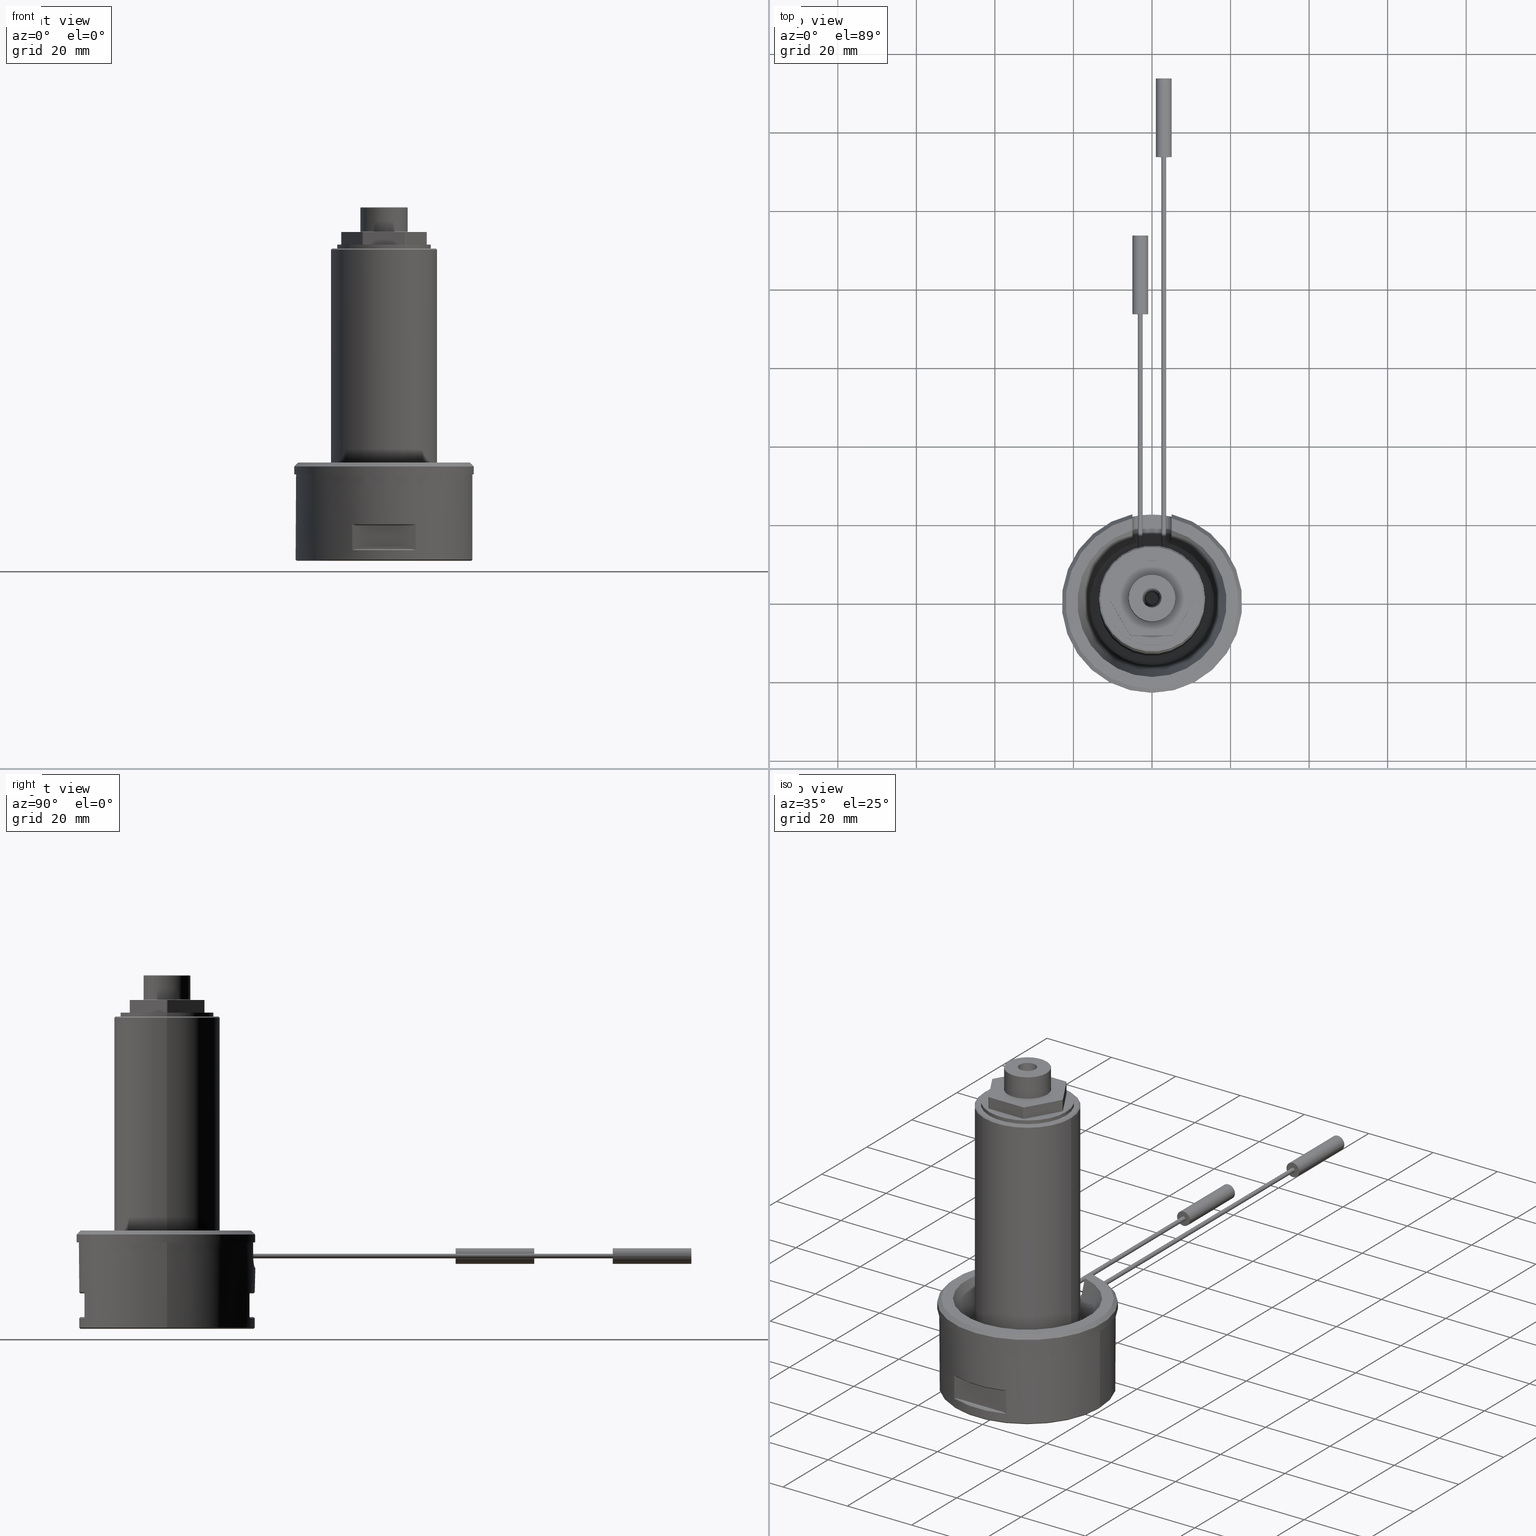
[diagram: canonical four-view strip — front | top / right | iso, engineering-drawing reading convention]
A machine part, canonical four-view strip (front | top / right | iso — engineering-drawing reading convention). The complete STEP part file that produces these views, byte-faithful:
ISO-10303-21;
HEADER;
/* Generated by software containing ST-Developer
 * from STEP Tools, Inc. (www.steptools.com) 
 */
/* OPTION: using custom schema-name function */

FILE_DESCRIPTION(
/* description */ (''),
/* implementation_level */ '2;1');

FILE_NAME(
/* name */ 'HSCL65S12A.stp',
/* time_stamp */ '2022-11-22T16:06:17+09:00',
/* author */ (''),
/* organization */ (''),
/* preprocessor_version */ 'ST-DEVELOPER v18.102',
/* originating_system */ 'SIEMENS PLM Software NX 2023',
/* authorisation */ '');

FILE_SCHEMA (('AUTOMOTIVE_DESIGN { 1 0 10303 214 3 1 1 1 }'));
ENDSEC;

DATA;
#10=SHAPE_REPRESENTATION_RELATIONSHIP('None',
'relationship between HSCL65S12A-None and HSCL65S12A-None',#22,#11);
#11=ADVANCED_BREP_SHAPE_REPRESENTATION('HSCL65S12A-None',(#182,#183,#184,
#185,#186),#1798);
#12=SHAPE_DEFINITION_REPRESENTATION(#13,#22);
#13=PRODUCT_DEFINITION_SHAPE('','',#14);
#14=PRODUCT_DEFINITION(' ','',#16,#15);
#15=PRODUCT_DEFINITION_CONTEXT('part definition',#21,'design');
#16=PRODUCT_DEFINITION_FORMATION_WITH_SPECIFIED_SOURCE(' ',' ',#18,
 .NOT_KNOWN.);
#17=PRODUCT_RELATED_PRODUCT_CATEGORY('part','',(#18));
#18=PRODUCT('HSCL65S12A','HSCL65S12A',' ',(#19));
#19=PRODUCT_CONTEXT(' ',#21,'mechanical');
#20=APPLICATION_PROTOCOL_DEFINITION('international standard',
'automotive_design',2010,#21);
#21=APPLICATION_CONTEXT(
'core data for automotive mechanical design processes');
#22=SHAPE_REPRESENTATION('HSCL65S12A-None',(#996),#1798);
#23=SPHERICAL_SURFACE('',#1063,11.);
#24=CONICAL_SURFACE('',#1048,15.9573329734641,18.7599999999998);
#25=CONICAL_SURFACE('',#1055,14.0000000000001,44.9999999999999);
#26=CONICAL_SURFACE('',#1059,4.74991933212937,29.9999999997446);
#27=CONICAL_SURFACE('',#1072,2.4447030463428,5.);
#28=CONICAL_SURFACE('',#1108,22.2,45.0000000000002);
#29=CONICAL_SURFACE('',#1109,22.2,45.0000000000002);
#30=CONICAL_SURFACE('',#1110,22.2,45.0000000000002);
#31=CONICAL_SURFACE('',#1111,22.2,45.0000000000002);
#32=CONICAL_SURFACE('',#1112,22.5,45.0000000000002);
#33=CONICAL_SURFACE('',#1113,13.2,45.0000000000005);
#34=CONICAL_SURFACE('',#1114,22.,45.);
#35=TOROIDAL_SURFACE('',#1046,15.199833762822,0.8);
#36=TOROIDAL_SURFACE('',#1066,11.9289321881346,5.);
#37=TOROIDAL_SURFACE('',#1106,6.2,0.2);
#38=TOROIDAL_SURFACE('',#1107,5.8,0.2);
#39=B_SPLINE_CURVE_WITH_KNOTS('',3,(#1518,#1519,#1520,#1521,#1522,#1523,
#1524,#1525,#1526,#1527,#1528,#1529,#1530,#1531,#1532,#1533),
 .UNSPECIFIED.,.F.,.F.,(4,3,3,3,3,4),(0.,0.210382546729296,0.420567258541741,
0.633779608703615,0.850966171544662,1.),.UNSPECIFIED.);
#40=B_SPLINE_CURVE_WITH_KNOTS('',3,(#1537,#1538,#1539,#1540,#1541,#1542,
#1543,#1544,#1545,#1546,#1547,#1548,#1549,#1550,#1551,#1552),
 .UNSPECIFIED.,.F.,.F.,(4,3,3,3,3,4),(0.,0.215733159336232,0.43133218634288,
0.64878656298699,0.86532988433574,1.),.UNSPECIFIED.);
#41=B_SPLINE_CURVE_WITH_KNOTS('',3,(#1573,#1574,#1575,#1576,#1577,#1578,
#1579,#1580,#1581,#1582,#1583,#1584,#1585),.UNSPECIFIED.,.F.,.F.,(4,3,3,
3,4),(0.,0.00583026885081895,0.111522525286211,0.626412330787777,1.),
 .UNSPECIFIED.);
#42=B_SPLINE_CURVE_WITH_KNOTS('',3,(#1589,#1590,#1591,#1592,#1593,#1594,
#1595,#1596,#1597,#1598,#1599,#1600,#1601),.UNSPECIFIED.,.F.,.F.,(4,3,3,
3,4),(0.,0.373587669212222,0.888477474713787,0.994169731149181,1.),
 .UNSPECIFIED.);
#43=B_SPLINE_CURVE_WITH_KNOTS('',3,(#1603,#1604,#1605,#1606,#1607,#1608,
#1609,#1610,#1611,#1612),.UNSPECIFIED.,.F.,.F.,(4,3,3,4),(0.,0.32770799258652,
0.655290656848575,1.),.UNSPECIFIED.);
#44=B_SPLINE_CURVE_WITH_KNOTS('',3,(#1614,#1615,#1616,#1617,#1618,#1619,
#1620),.UNSPECIFIED.,.F.,.F.,(4,3,4),(0.,0.718508524364149,1.),
 .UNSPECIFIED.);
#45=B_SPLINE_CURVE_WITH_KNOTS('',3,(#1624,#1625,#1626,#1627),
 .UNSPECIFIED.,.F.,.F.,(4,4),(0.,1.),.UNSPECIFIED.);
#46=B_SPLINE_CURVE_WITH_KNOTS('',3,(#1629,#1630,#1631,#1632,#1633,#1634,
#1635,#1636,#1637,#1638),.UNSPECIFIED.,.F.,.F.,(4,3,3,4),(0.,0.347353954695441,
0.696050717213932,1.),.UNSPECIFIED.);
#47=B_SPLINE_CURVE_WITH_KNOTS('',3,(#1717,#1718,#1719,#1720),
 .UNSPECIFIED.,.F.,.F.,(4,4),(0.,1.),.UNSPECIFIED.);
#48=B_SPLINE_CURVE_WITH_KNOTS('',3,(#1721,#1722,#1723,#1724),
 .UNSPECIFIED.,.F.,.F.,(4,4),(0.,1.),.UNSPECIFIED.);
#49=B_SPLINE_CURVE_WITH_KNOTS('',3,(#1725,#1726,#1727,#1728),
 .UNSPECIFIED.,.F.,.F.,(4,4),(0.,1.),.UNSPECIFIED.);
#50=B_SPLINE_CURVE_WITH_KNOTS('',3,(#1729,#1730,#1731,#1732),
 .UNSPECIFIED.,.F.,.F.,(4,4),(0.,1.),.UNSPECIFIED.);
#51=B_SPLINE_CURVE_WITH_KNOTS('',3,(#1744,#1745,#1746,#1747),
 .UNSPECIFIED.,.F.,.F.,(4,4),(0.,1.),.UNSPECIFIED.);
#52=B_SPLINE_CURVE_WITH_KNOTS('',3,(#1748,#1749,#1750,#1751),
 .UNSPECIFIED.,.F.,.F.,(4,4),(0.,1.),.UNSPECIFIED.);
#53=B_SPLINE_CURVE_WITH_KNOTS('',3,(#1752,#1753,#1754,#1755),
 .UNSPECIFIED.,.F.,.F.,(4,4),(0.,1.),.UNSPECIFIED.);
#54=B_SPLINE_CURVE_WITH_KNOTS('',3,(#1756,#1757,#1758,#1759),
 .UNSPECIFIED.,.F.,.F.,(4,4),(0.,1.),.UNSPECIFIED.);
#55=B_SPLINE_CURVE_WITH_KNOTS('',3,(#1761,#1762,#1763,#1764),
 .UNSPECIFIED.,.F.,.F.,(4,4),(0.,1.),.UNSPECIFIED.);
#56=B_SPLINE_CURVE_WITH_KNOTS('',3,(#1767,#1768,#1769,#1770),
 .UNSPECIFIED.,.F.,.F.,(4,4),(0.,1.),.UNSPECIFIED.);
#57=LINE('',#1436,#101);
#58=LINE('',#1441,#102);
#59=LINE('',#1445,#103);
#60=LINE('',#1449,#104);
#61=LINE('',#1453,#105);
#62=LINE('',#1457,#106);
#63=LINE('',#1461,#107);
#64=LINE('',#1463,#108);
#65=LINE('',#1467,#109);
#66=LINE('',#1471,#110);
#67=LINE('',#1473,#111);
#68=LINE('',#1475,#112);
#69=LINE('',#1479,#113);
#70=LINE('',#1483,#114);
#71=LINE('',#1485,#115);
#72=LINE('',#1489,#116);
#73=LINE('',#1491,#117);
#74=LINE('',#1495,#118);
#75=LINE('',#1499,#119);
#76=LINE('',#1504,#120);
#77=LINE('',#1507,#121);
#78=LINE('',#1512,#122);
#79=LINE('',#1515,#123);
#80=LINE('',#1554,#124);
#81=LINE('',#1558,#125);
#82=LINE('',#1563,#126);
#83=LINE('',#1567,#127);
#84=LINE('',#1568,#128);
#85=LINE('',#1640,#129);
#86=LINE('',#1644,#130);
#87=LINE('',#1670,#131);
#88=LINE('',#1671,#132);
#89=LINE('',#1689,#133);
#90=LINE('',#1690,#134);
#91=LINE('',#1691,#135);
#92=LINE('',#1692,#136);
#93=LINE('',#1693,#137);
#94=LINE('',#1694,#138);
#95=LINE('',#1707,#139);
#96=LINE('',#1712,#140);
#97=LINE('',#1734,#141);
#98=LINE('',#1739,#142);
#99=LINE('',#1765,#143);
#100=LINE('',#1771,#144);
#101=VECTOR('',#1154,1.);
#102=VECTOR('',#1157,1.);
#103=VECTOR('',#1160,1.);
#104=VECTOR('',#1163,1.);
#105=VECTOR('',#1166,1.);
#106=VECTOR('',#1169,1.);
#107=VECTOR('',#1174,1.);
#108=VECTOR('',#1175,1.);
#109=VECTOR('',#1180,1.);
#110=VECTOR('',#1183,1.);
#111=VECTOR('',#1186,1.);
#112=VECTOR('',#1187,1.);
#113=VECTOR('',#1192,1.);
#114=VECTOR('',#1195,1.);
#115=VECTOR('',#1198,1.);
#116=VECTOR('',#1201,1.);
#117=VECTOR('',#1204,1.);
#118=VECTOR('',#1207,1.);
#119=VECTOR('',#1212,1.);
#120=VECTOR('',#1215,1.);
#121=VECTOR('',#1218,1.);
#122=VECTOR('',#1221,1.);
#123=VECTOR('',#1224,1.);
#124=VECTOR('',#1227,1.);
#125=VECTOR('',#1232,1.);
#126=VECTOR('',#1235,1.);
#127=VECTOR('',#1240,1.);
#128=VECTOR('',#1241,1.);
#129=VECTOR('',#1254,1.);
#130=VECTOR('',#1257,1.);
#131=VECTOR('',#1292,1.);
#132=VECTOR('',#1293,1.);
#133=VECTOR('',#1316,1.);
#134=VECTOR('',#1317,1.);
#135=VECTOR('',#1318,1.);
#136=VECTOR('',#1319,1.);
#137=VECTOR('',#1320,1.);
#138=VECTOR('',#1321,1.);
#139=VECTOR('',#1338,1.);
#140=VECTOR('',#1343,1.);
#141=VECTOR('',#1350,1.);
#142=VECTOR('',#1355,1.);
#143=VECTOR('',#1362,1.);
#144=VECTOR('',#1365,1.);
#145=PRESENTATION_LAYER_ASSIGNMENT('1','Layer 1',(#182,#183,#184,#185,#186));
#146=STYLED_ITEM('',(#151),#182);
#147=STYLED_ITEM('',(#152),#183);
#148=STYLED_ITEM('',(#153),#184);
#149=STYLED_ITEM('',(#154),#185);
#150=STYLED_ITEM('',(#155),#186);
#151=PRESENTATION_STYLE_ASSIGNMENT((#156));
#152=PRESENTATION_STYLE_ASSIGNMENT((#157));
#153=PRESENTATION_STYLE_ASSIGNMENT((#158));
#154=PRESENTATION_STYLE_ASSIGNMENT((#159));
#155=PRESENTATION_STYLE_ASSIGNMENT((#160));
#156=SURFACE_STYLE_USAGE(.BOTH.,#161);
#157=SURFACE_STYLE_USAGE(.BOTH.,#162);
#158=SURFACE_STYLE_USAGE(.BOTH.,#163);
#159=SURFACE_STYLE_USAGE(.BOTH.,#164);
#160=SURFACE_STYLE_USAGE(.BOTH.,#165);
#161=SURFACE_SIDE_STYLE('',(#166));
#162=SURFACE_SIDE_STYLE('',(#167));
#163=SURFACE_SIDE_STYLE('',(#168));
#164=SURFACE_SIDE_STYLE('',(#169));
#165=SURFACE_SIDE_STYLE('',(#170));
#166=SURFACE_STYLE_FILL_AREA(#171);
#167=SURFACE_STYLE_FILL_AREA(#172);
#168=SURFACE_STYLE_FILL_AREA(#173);
#169=SURFACE_STYLE_FILL_AREA(#174);
#170=SURFACE_STYLE_FILL_AREA(#175);
#171=FILL_AREA_STYLE('',(#176));
#172=FILL_AREA_STYLE('',(#177));
#173=FILL_AREA_STYLE('',(#178));
#174=FILL_AREA_STYLE('',(#179));
#175=FILL_AREA_STYLE('',(#180));
#176=FILL_AREA_STYLE_COLOUR('',#181);
#177=FILL_AREA_STYLE_COLOUR('',#181);
#178=FILL_AREA_STYLE_COLOUR('',#181);
#179=FILL_AREA_STYLE_COLOUR('',#181);
#180=FILL_AREA_STYLE_COLOUR('',#181);
#181=COLOUR_RGB('medium steel',0.611764705882353,0.658823529411765,0.670588235294118);
#182=MANIFOLD_SOLID_BREP('',#187);
#183=MANIFOLD_SOLID_BREP('',#188);
#184=MANIFOLD_SOLID_BREP('',#189);
#185=MANIFOLD_SOLID_BREP('',#190);
#186=MANIFOLD_SOLID_BREP('',#191);
#187=CLOSED_SHELL('',(#267,#268,#269));
#188=CLOSED_SHELL('',(#270,#271,#272));
#189=CLOSED_SHELL('',(#273,#274,#275));
#190=CLOSED_SHELL('',(#276,#277,#278,#279,#280,#281,#282,#283,#284,#285,
#286,#287,#288,#289,#290,#291,#292,#293,#294,#295,#296,#297,#298,#299,#300,
#301,#302,#303,#304,#305,#306,#307,#308,#309,#310,#311,#312,#313,#314,#315,
#316,#317,#318,#319,#320,#321,#322,#323,#324,#325,#326,#327,#328,#329,#330));
#191=CLOSED_SHELL('',(#331,#332,#333));
#192=PLANE('',#1000);
#193=PLANE('',#1001);
#194=PLANE('',#1005);
#195=PLANE('',#1006);
#196=PLANE('',#1010);
#197=PLANE('',#1011);
#198=PLANE('',#1019);
#199=PLANE('',#1043);
#200=PLANE('',#1050);
#201=PLANE('',#1053);
#202=PLANE('',#1057);
#203=PLANE('',#1065);
#204=PLANE('',#1068);
#205=PLANE('',#1070);
#206=PLANE('',#1074);
#207=PLANE('',#1079);
#208=PLANE('',#1083);
#209=PLANE('',#1087);
#210=PLANE('',#1089);
#211=PLANE('',#1090);
#212=PLANE('',#1092);
#213=PLANE('',#1094);
#214=PLANE('',#1095);
#215=PLANE('',#1096);
#216=PLANE('',#1097);
#217=PLANE('',#1098);
#218=PLANE('',#1099);
#219=PLANE('',#1100);
#220=PLANE('',#1101);
#221=PLANE('',#1102);
#222=PLANE('',#1103);
#223=PLANE('',#1118);
#224=PLANE('',#1119);
#225=FACE_OUTER_BOUND('',#406,.T.);
#226=FACE_OUTER_BOUND('',#407,.T.);
#227=FACE_OUTER_BOUND('',#410,.T.);
#228=FACE_OUTER_BOUND('',#411,.T.);
#229=FACE_OUTER_BOUND('',#414,.T.);
#230=FACE_OUTER_BOUND('',#415,.T.);
#231=FACE_OUTER_BOUND('',#418,.T.);
#232=FACE_OUTER_BOUND('',#419,.T.);
#233=FACE_OUTER_BOUND('',#420,.T.);
#234=FACE_OUTER_BOUND('',#421,.T.);
#235=FACE_OUTER_BOUND('',#422,.T.);
#236=FACE_OUTER_BOUND('',#423,.T.);
#237=FACE_OUTER_BOUND('',#428,.T.);
#238=FACE_OUTER_BOUND('',#429,.T.);
#239=FACE_OUTER_BOUND('',#430,.T.);
#240=FACE_OUTER_BOUND('',#431,.T.);
#241=FACE_OUTER_BOUND('',#432,.T.);
#242=FACE_OUTER_BOUND('',#437,.T.);
#243=FACE_OUTER_BOUND('',#450,.T.);
#244=FACE_OUTER_BOUND('',#465,.T.);
#245=FACE_OUTER_BOUND('',#466,.T.);
#246=FACE_OUTER_BOUND('',#467,.T.);
#247=FACE_OUTER_BOUND('',#468,.T.);
#248=FACE_OUTER_BOUND('',#469,.T.);
#249=FACE_OUTER_BOUND('',#470,.T.);
#250=FACE_OUTER_BOUND('',#471,.T.);
#251=FACE_OUTER_BOUND('',#472,.T.);
#252=FACE_OUTER_BOUND('',#473,.T.);
#253=FACE_OUTER_BOUND('',#474,.T.);
#254=FACE_OUTER_BOUND('',#475,.T.);
#255=FACE_OUTER_BOUND('',#476,.T.);
#256=FACE_OUTER_BOUND('',#477,.T.);
#257=FACE_OUTER_BOUND('',#478,.T.);
#258=FACE_OUTER_BOUND('',#479,.T.);
#259=FACE_OUTER_BOUND('',#480,.T.);
#260=FACE_OUTER_BOUND('',#485,.T.);
#261=FACE_OUTER_BOUND('',#486,.T.);
#262=FACE_OUTER_BOUND('',#487,.T.);
#263=FACE_OUTER_BOUND('',#488,.T.);
#264=FACE_OUTER_BOUND('',#493,.T.);
#265=FACE_OUTER_BOUND('',#496,.T.);
#266=FACE_OUTER_BOUND('',#497,.T.);
#267=ADVANCED_FACE('',(#352,#353),#334,.T.);
#268=ADVANCED_FACE('',(#225),#192,.T.);
#269=ADVANCED_FACE('',(#226),#193,.F.);
#270=ADVANCED_FACE('',(#354,#355),#335,.T.);
#271=ADVANCED_FACE('',(#227),#194,.T.);
#272=ADVANCED_FACE('',(#228),#195,.F.);
#273=ADVANCED_FACE('',(#356,#357),#336,.T.);
#274=ADVANCED_FACE('',(#229),#196,.T.);
#275=ADVANCED_FACE('',(#230),#197,.F.);
#276=ADVANCED_FACE('',(#358,#359),#198,.F.);
#277=ADVANCED_FACE('',(#231),#337,.T.);
#278=ADVANCED_FACE('',(#232),#338,.T.);
#279=ADVANCED_FACE('',(#233),#339,.T.);
#280=ADVANCED_FACE('',(#234),#340,.T.);
#281=ADVANCED_FACE('',(#235),#341,.T.);
#282=ADVANCED_FACE('',(#236),#342,.T.);
#283=ADVANCED_FACE('',(#360,#361,#362,#363),#343,.T.);
#284=ADVANCED_FACE('',(#237),#344,.T.);
#285=ADVANCED_FACE('',(#238),#199,.F.);
#286=ADVANCED_FACE('',(#239),#35,.F.);
#287=ADVANCED_FACE('',(#240),#24,.F.);
#288=ADVANCED_FACE('',(#241),#200,.F.);
#289=ADVANCED_FACE('',(#364,#365),#201,.F.);
#290=ADVANCED_FACE('',(#366,#367),#25,.F.);
#291=ADVANCED_FACE('',(#242),#202,.F.);
#292=ADVANCED_FACE('',(#368,#369),#26,.F.);
#293=ADVANCED_FACE('',(#370,#371),#345,.F.);
#294=ADVANCED_FACE('',(#372,#373),#23,.F.);
#295=ADVANCED_FACE('',(#374,#375),#203,.F.);
#296=ADVANCED_FACE('',(#376,#377),#36,.F.);
#297=ADVANCED_FACE('',(#378,#379),#204,.T.);
#298=ADVANCED_FACE('',(#243),#205,.F.);
#299=ADVANCED_FACE('',(#380,#381),#27,.F.);
#300=ADVANCED_FACE('',(#382,#383),#206,.F.);
#301=ADVANCED_FACE('',(#384,#385),#346,.T.);
#302=ADVANCED_FACE('',(#386,#387),#207,.F.);
#303=ADVANCED_FACE('',(#388,#389),#347,.T.);
#304=ADVANCED_FACE('',(#390,#391),#208,.F.);
#305=ADVANCED_FACE('',(#392,#393),#348,.T.);
#306=ADVANCED_FACE('',(#244),#209,.T.);
#307=ADVANCED_FACE('',(#245),#210,.T.);
#308=ADVANCED_FACE('',(#246),#211,.T.);
#309=ADVANCED_FACE('',(#247),#212,.T.);
#310=ADVANCED_FACE('',(#248),#213,.T.);
#311=ADVANCED_FACE('',(#249),#214,.T.);
#312=ADVANCED_FACE('',(#250),#215,.T.);
#313=ADVANCED_FACE('',(#251),#216,.T.);
#314=ADVANCED_FACE('',(#252),#217,.F.);
#315=ADVANCED_FACE('',(#253),#218,.F.);
#316=ADVANCED_FACE('',(#254),#219,.F.);
#317=ADVANCED_FACE('',(#255),#220,.F.);
#318=ADVANCED_FACE('',(#256),#221,.F.);
#319=ADVANCED_FACE('',(#257),#222,.F.);
#320=ADVANCED_FACE('',(#258),#349,.F.);
#321=ADVANCED_FACE('',(#259),#350,.F.);
#322=ADVANCED_FACE('',(#394,#395),#37,.F.);
#323=ADVANCED_FACE('',(#396,#397),#38,.T.);
#324=ADVANCED_FACE('',(#260),#28,.T.);
#325=ADVANCED_FACE('',(#261),#29,.T.);
#326=ADVANCED_FACE('',(#262),#30,.T.);
#327=ADVANCED_FACE('',(#263),#31,.T.);
#328=ADVANCED_FACE('',(#398,#399),#32,.T.);
#329=ADVANCED_FACE('',(#400,#401),#33,.T.);
#330=ADVANCED_FACE('',(#264),#34,.T.);
#331=ADVANCED_FACE('',(#402,#403),#351,.T.);
#332=ADVANCED_FACE('',(#265),#223,.T.);
#333=ADVANCED_FACE('',(#266),#224,.F.);
#334=CYLINDRICAL_SURFACE('',#999,0.6);
#335=CYLINDRICAL_SURFACE('',#1004,2.);
#336=CYLINDRICAL_SURFACE('',#1009,2.);
#337=CYLINDRICAL_SURFACE('',#1021,10.9);
#338=CYLINDRICAL_SURFACE('',#1023,10.9);
#339=CYLINDRICAL_SURFACE('',#1025,10.9);
#340=CYLINDRICAL_SURFACE('',#1027,10.9);
#341=CYLINDRICAL_SURFACE('',#1029,10.9);
#342=CYLINDRICAL_SURFACE('',#1031,10.9);
#343=CYLINDRICAL_SURFACE('',#1039,22.5);
#344=CYLINDRICAL_SURFACE('',#1042,23.);
#345=CYLINDRICAL_SURFACE('',#1061,2.00000000000749);
#346=CYLINDRICAL_SURFACE('',#1077,6.);
#347=CYLINDRICAL_SURFACE('',#1081,11.9);
#348=CYLINDRICAL_SURFACE('',#1085,13.5);
#349=CYLINDRICAL_SURFACE('',#1104,3.);
#350=CYLINDRICAL_SURFACE('',#1105,3.);
#351=CYLINDRICAL_SURFACE('',#1117,0.6);
#352=FACE_BOUND('',#404,.T.);
#353=FACE_BOUND('',#405,.T.);
#354=FACE_BOUND('',#408,.T.);
#355=FACE_BOUND('',#409,.T.);
#356=FACE_BOUND('',#412,.T.);
#357=FACE_BOUND('',#413,.T.);
#358=FACE_BOUND('',#416,.T.);
#359=FACE_BOUND('',#417,.T.);
#360=FACE_BOUND('',#424,.T.);
#361=FACE_BOUND('',#425,.T.);
#362=FACE_BOUND('',#426,.T.);
#363=FACE_BOUND('',#427,.T.);
#364=FACE_BOUND('',#433,.T.);
#365=FACE_BOUND('',#434,.T.);
#366=FACE_BOUND('',#435,.T.);
#367=FACE_BOUND('',#436,.T.);
#368=FACE_BOUND('',#438,.T.);
#369=FACE_BOUND('',#439,.T.);
#370=FACE_BOUND('',#440,.T.);
#371=FACE_BOUND('',#441,.T.);
#372=FACE_BOUND('',#442,.T.);
#373=FACE_BOUND('',#443,.T.);
#374=FACE_BOUND('',#444,.T.);
#375=FACE_BOUND('',#445,.T.);
#376=FACE_BOUND('',#446,.T.);
#377=FACE_BOUND('',#447,.T.);
#378=FACE_BOUND('',#448,.T.);
#379=FACE_BOUND('',#449,.T.);
#380=FACE_BOUND('',#451,.T.);
#381=FACE_BOUND('',#452,.T.);
#382=FACE_BOUND('',#453,.T.);
#383=FACE_BOUND('',#454,.T.);
#384=FACE_BOUND('',#455,.T.);
#385=FACE_BOUND('',#456,.T.);
#386=FACE_BOUND('',#457,.T.);
#387=FACE_BOUND('',#458,.T.);
#388=FACE_BOUND('',#459,.T.);
#389=FACE_BOUND('',#460,.T.);
#390=FACE_BOUND('',#461,.T.);
#391=FACE_BOUND('',#462,.T.);
#392=FACE_BOUND('',#463,.T.);
#393=FACE_BOUND('',#464,.T.);
#394=FACE_BOUND('',#481,.T.);
#395=FACE_BOUND('',#482,.T.);
#396=FACE_BOUND('',#483,.T.);
#397=FACE_BOUND('',#484,.T.);
#398=FACE_BOUND('',#489,.T.);
#399=FACE_BOUND('',#490,.T.);
#400=FACE_BOUND('',#491,.T.);
#401=FACE_BOUND('',#492,.T.);
#402=FACE_BOUND('',#494,.T.);
#403=FACE_BOUND('',#495,.T.);
#404=EDGE_LOOP('',(#498));
#405=EDGE_LOOP('',(#499));
#406=EDGE_LOOP('',(#500));
#407=EDGE_LOOP('',(#501));
#408=EDGE_LOOP('',(#502));
#409=EDGE_LOOP('',(#503));
#410=EDGE_LOOP('',(#504));
#411=EDGE_LOOP('',(#505));
#412=EDGE_LOOP('',(#506));
#413=EDGE_LOOP('',(#507));
#414=EDGE_LOOP('',(#508));
#415=EDGE_LOOP('',(#509));
#416=EDGE_LOOP('',(#510));
#417=EDGE_LOOP('',(#511,#512,#513,#514,#515,#516,#517,#518,#519,#520,#521,
#522));
#418=EDGE_LOOP('',(#523,#524,#525,#526));
#419=EDGE_LOOP('',(#527,#528,#529,#530));
#420=EDGE_LOOP('',(#531,#532,#533,#534));
#421=EDGE_LOOP('',(#535,#536,#537,#538));
#422=EDGE_LOOP('',(#539,#540,#541,#542));
#423=EDGE_LOOP('',(#543,#544,#545,#546));
#424=EDGE_LOOP('',(#547));
#425=EDGE_LOOP('',(#548,#549,#550,#551));
#426=EDGE_LOOP('',(#552,#553,#554,#555));
#427=EDGE_LOOP('',(#556,#557,#558,#559,#560,#561));
#428=EDGE_LOOP('',(#562,#563,#564,#565));
#429=EDGE_LOOP('',(#566,#567,#568,#569));
#430=EDGE_LOOP('',(#570,#571,#572,#573));
#431=EDGE_LOOP('',(#574,#575,#576,#577,#578,#579));
#432=EDGE_LOOP('',(#580,#581,#582,#583));
#433=EDGE_LOOP('',(#584));
#434=EDGE_LOOP('',(#585));
#435=EDGE_LOOP('',(#586));
#436=EDGE_LOOP('',(#587));
#437=EDGE_LOOP('',(#588));
#438=EDGE_LOOP('',(#589));
#439=EDGE_LOOP('',(#590));
#440=EDGE_LOOP('',(#591));
#441=EDGE_LOOP('',(#592));
#442=EDGE_LOOP('',(#593));
#443=EDGE_LOOP('',(#594));
#444=EDGE_LOOP('',(#595));
#445=EDGE_LOOP('',(#596));
#446=EDGE_LOOP('',(#597));
#447=EDGE_LOOP('',(#598));
#448=EDGE_LOOP('',(#599,#600,#601,#602));
#449=EDGE_LOOP('',(#603));
#450=EDGE_LOOP('',(#604));
#451=EDGE_LOOP('',(#605));
#452=EDGE_LOOP('',(#606));
#453=EDGE_LOOP('',(#607));
#454=EDGE_LOOP('',(#608));
#455=EDGE_LOOP('',(#609));
#456=EDGE_LOOP('',(#610));
#457=EDGE_LOOP('',(#611,#612,#613,#614,#615,#616,#617,#618,#619,#620,#621,
#622));
#458=EDGE_LOOP('',(#623));
#459=EDGE_LOOP('',(#624));
#460=EDGE_LOOP('',(#625));
#461=EDGE_LOOP('',(#626));
#462=EDGE_LOOP('',(#627));
#463=EDGE_LOOP('',(#628));
#464=EDGE_LOOP('',(#629));
#465=EDGE_LOOP('',(#630,#631));
#466=EDGE_LOOP('',(#632,#633));
#467=EDGE_LOOP('',(#634,#635,#636,#637,#638,#639,#640,#641));
#468=EDGE_LOOP('',(#642,#643));
#469=EDGE_LOOP('',(#644,#645));
#470=EDGE_LOOP('',(#646,#647,#648,#649,#650,#651,#652,#653));
#471=EDGE_LOOP('',(#654,#655,#656,#657,#658,#659,#660));
#472=EDGE_LOOP('',(#661,#662,#663,#664,#665,#666,#667));
#473=EDGE_LOOP('',(#668,#669,#670,#671));
#474=EDGE_LOOP('',(#672,#673,#674,#675));
#475=EDGE_LOOP('',(#676,#677,#678,#679));
#476=EDGE_LOOP('',(#680,#681,#682,#683));
#477=EDGE_LOOP('',(#684,#685,#686,#687));
#478=EDGE_LOOP('',(#688,#689,#690,#691));
#479=EDGE_LOOP('',(#692,#693,#694,#695,#696));
#480=EDGE_LOOP('',(#697,#698,#699,#700,#701));
#481=EDGE_LOOP('',(#702));
#482=EDGE_LOOP('',(#703));
#483=EDGE_LOOP('',(#704));
#484=EDGE_LOOP('',(#705));
#485=EDGE_LOOP('',(#706,#707,#708,#709));
#486=EDGE_LOOP('',(#710,#711,#712,#713));
#487=EDGE_LOOP('',(#714,#715,#716,#717));
#488=EDGE_LOOP('',(#718,#719,#720,#721));
#489=EDGE_LOOP('',(#722));
#490=EDGE_LOOP('',(#723));
#491=EDGE_LOOP('',(#724));
#492=EDGE_LOOP('',(#725));
#493=EDGE_LOOP('',(#726,#727,#728,#729));
#494=EDGE_LOOP('',(#730));
#495=EDGE_LOOP('',(#731));
#496=EDGE_LOOP('',(#732));
#497=EDGE_LOOP('',(#733));
#498=ORIENTED_EDGE('',*,*,#822,.F.);
#499=ORIENTED_EDGE('',*,*,#823,.T.);
#500=ORIENTED_EDGE('',*,*,#822,.T.);
#501=ORIENTED_EDGE('',*,*,#823,.F.);
#502=ORIENTED_EDGE('',*,*,#824,.F.);
#503=ORIENTED_EDGE('',*,*,#825,.T.);
#504=ORIENTED_EDGE('',*,*,#824,.T.);
#505=ORIENTED_EDGE('',*,*,#825,.F.);
#506=ORIENTED_EDGE('',*,*,#826,.F.);
#507=ORIENTED_EDGE('',*,*,#827,.T.);
#508=ORIENTED_EDGE('',*,*,#826,.T.);
#509=ORIENTED_EDGE('',*,*,#827,.F.);
#510=ORIENTED_EDGE('',*,*,#828,.T.);
#511=ORIENTED_EDGE('',*,*,#829,.F.);
#512=ORIENTED_EDGE('',*,*,#830,.T.);
#513=ORIENTED_EDGE('',*,*,#831,.F.);
#514=ORIENTED_EDGE('',*,*,#832,.T.);
#515=ORIENTED_EDGE('',*,*,#833,.F.);
#516=ORIENTED_EDGE('',*,*,#834,.T.);
#517=ORIENTED_EDGE('',*,*,#835,.F.);
#518=ORIENTED_EDGE('',*,*,#836,.T.);
#519=ORIENTED_EDGE('',*,*,#837,.F.);
#520=ORIENTED_EDGE('',*,*,#838,.T.);
#521=ORIENTED_EDGE('',*,*,#839,.F.);
#522=ORIENTED_EDGE('',*,*,#840,.T.);
#523=ORIENTED_EDGE('',*,*,#841,.F.);
#524=ORIENTED_EDGE('',*,*,#840,.F.);
#525=ORIENTED_EDGE('',*,*,#842,.F.);
#526=ORIENTED_EDGE('',*,*,#843,.T.);
#527=ORIENTED_EDGE('',*,*,#844,.F.);
#528=ORIENTED_EDGE('',*,*,#845,.T.);
#529=ORIENTED_EDGE('',*,*,#846,.T.);
#530=ORIENTED_EDGE('',*,*,#830,.F.);
#531=ORIENTED_EDGE('',*,*,#847,.F.);
#532=ORIENTED_EDGE('',*,*,#838,.F.);
#533=ORIENTED_EDGE('',*,*,#848,.F.);
#534=ORIENTED_EDGE('',*,*,#849,.T.);
#535=ORIENTED_EDGE('',*,*,#832,.F.);
#536=ORIENTED_EDGE('',*,*,#850,.T.);
#537=ORIENTED_EDGE('',*,*,#851,.T.);
#538=ORIENTED_EDGE('',*,*,#852,.T.);
#539=ORIENTED_EDGE('',*,*,#834,.F.);
#540=ORIENTED_EDGE('',*,*,#853,.T.);
#541=ORIENTED_EDGE('',*,*,#854,.T.);
#542=ORIENTED_EDGE('',*,*,#855,.T.);
#543=ORIENTED_EDGE('',*,*,#836,.F.);
#544=ORIENTED_EDGE('',*,*,#856,.T.);
#545=ORIENTED_EDGE('',*,*,#857,.T.);
#546=ORIENTED_EDGE('',*,*,#858,.F.);
#547=ORIENTED_EDGE('',*,*,#859,.T.);
#548=ORIENTED_EDGE('',*,*,#860,.F.);
#549=ORIENTED_EDGE('',*,*,#861,.T.);
#550=ORIENTED_EDGE('',*,*,#862,.F.);
#551=ORIENTED_EDGE('',*,*,#863,.T.);
#552=ORIENTED_EDGE('',*,*,#864,.F.);
#553=ORIENTED_EDGE('',*,*,#865,.T.);
#554=ORIENTED_EDGE('',*,*,#866,.F.);
#555=ORIENTED_EDGE('',*,*,#867,.T.);
#556=ORIENTED_EDGE('',*,*,#868,.F.);
#557=ORIENTED_EDGE('',*,*,#869,.T.);
#558=ORIENTED_EDGE('',*,*,#870,.T.);
#559=ORIENTED_EDGE('',*,*,#871,.T.);
#560=ORIENTED_EDGE('',*,*,#872,.F.);
#561=ORIENTED_EDGE('',*,*,#873,.F.);
#562=ORIENTED_EDGE('',*,*,#874,.F.);
#563=ORIENTED_EDGE('',*,*,#875,.T.);
#564=ORIENTED_EDGE('',*,*,#876,.F.);
#565=ORIENTED_EDGE('',*,*,#877,.T.);
#566=ORIENTED_EDGE('',*,*,#878,.F.);
#567=ORIENTED_EDGE('',*,*,#873,.T.);
#568=ORIENTED_EDGE('',*,*,#879,.F.);
#569=ORIENTED_EDGE('',*,*,#877,.F.);
#570=ORIENTED_EDGE('',*,*,#880,.T.);
#571=ORIENTED_EDGE('',*,*,#881,.T.);
#572=ORIENTED_EDGE('',*,*,#882,.F.);
#573=ORIENTED_EDGE('',*,*,#883,.T.);
#574=ORIENTED_EDGE('',*,*,#882,.T.);
#575=ORIENTED_EDGE('',*,*,#884,.T.);
#576=ORIENTED_EDGE('',*,*,#885,.T.);
#577=ORIENTED_EDGE('',*,*,#886,.T.);
#578=ORIENTED_EDGE('',*,*,#887,.T.);
#579=ORIENTED_EDGE('',*,*,#888,.T.);
#580=ORIENTED_EDGE('',*,*,#889,.T.);
#581=ORIENTED_EDGE('',*,*,#890,.T.);
#582=ORIENTED_EDGE('',*,*,#891,.F.);
#583=ORIENTED_EDGE('',*,*,#886,.F.);
#584=ORIENTED_EDGE('',*,*,#892,.T.);
#585=ORIENTED_EDGE('',*,*,#893,.T.);
#586=ORIENTED_EDGE('',*,*,#894,.T.);
#587=ORIENTED_EDGE('',*,*,#893,.F.);
#588=ORIENTED_EDGE('',*,*,#895,.T.);
#589=ORIENTED_EDGE('',*,*,#896,.T.);
#590=ORIENTED_EDGE('',*,*,#895,.F.);
#591=ORIENTED_EDGE('',*,*,#897,.T.);
#592=ORIENTED_EDGE('',*,*,#896,.F.);
#593=ORIENTED_EDGE('',*,*,#898,.T.);
#594=ORIENTED_EDGE('',*,*,#897,.F.);
#595=ORIENTED_EDGE('',*,*,#899,.T.);
#596=ORIENTED_EDGE('',*,*,#898,.F.);
#597=ORIENTED_EDGE('',*,*,#894,.F.);
#598=ORIENTED_EDGE('',*,*,#899,.F.);
#599=ORIENTED_EDGE('',*,*,#870,.F.);
#600=ORIENTED_EDGE('',*,*,#900,.T.);
#601=ORIENTED_EDGE('',*,*,#880,.F.);
#602=ORIENTED_EDGE('',*,*,#901,.T.);
#603=ORIENTED_EDGE('',*,*,#902,.F.);
#604=ORIENTED_EDGE('',*,*,#903,.T.);
#605=ORIENTED_EDGE('',*,*,#903,.F.);
#606=ORIENTED_EDGE('',*,*,#904,.T.);
#607=ORIENTED_EDGE('',*,*,#905,.T.);
#608=ORIENTED_EDGE('',*,*,#904,.F.);
#609=ORIENTED_EDGE('',*,*,#906,.T.);
#610=ORIENTED_EDGE('',*,*,#907,.T.);
#611=ORIENTED_EDGE('',*,*,#849,.F.);
#612=ORIENTED_EDGE('',*,*,#908,.T.);
#613=ORIENTED_EDGE('',*,*,#857,.F.);
#614=ORIENTED_EDGE('',*,*,#909,.T.);
#615=ORIENTED_EDGE('',*,*,#854,.F.);
#616=ORIENTED_EDGE('',*,*,#910,.T.);
#617=ORIENTED_EDGE('',*,*,#851,.F.);
#618=ORIENTED_EDGE('',*,*,#911,.T.);
#619=ORIENTED_EDGE('',*,*,#845,.F.);
#620=ORIENTED_EDGE('',*,*,#912,.T.);
#621=ORIENTED_EDGE('',*,*,#843,.F.);
#622=ORIENTED_EDGE('',*,*,#913,.T.);
#623=ORIENTED_EDGE('',*,*,#914,.T.);
#624=ORIENTED_EDGE('',*,*,#914,.F.);
#625=ORIENTED_EDGE('',*,*,#915,.T.);
#626=ORIENTED_EDGE('',*,*,#916,.T.);
#627=ORIENTED_EDGE('',*,*,#915,.F.);
#628=ORIENTED_EDGE('',*,*,#917,.T.);
#629=ORIENTED_EDGE('',*,*,#902,.T.);
#630=ORIENTED_EDGE('',*,*,#918,.T.);
#631=ORIENTED_EDGE('',*,*,#919,.T.);
#632=ORIENTED_EDGE('',*,*,#920,.T.);
#633=ORIENTED_EDGE('',*,*,#921,.T.);
#634=ORIENTED_EDGE('',*,*,#866,.T.);
#635=ORIENTED_EDGE('',*,*,#922,.T.);
#636=ORIENTED_EDGE('',*,*,#918,.F.);
#637=ORIENTED_EDGE('',*,*,#923,.T.);
#638=ORIENTED_EDGE('',*,*,#864,.T.);
#639=ORIENTED_EDGE('',*,*,#924,.T.);
#640=ORIENTED_EDGE('',*,*,#920,.F.);
#641=ORIENTED_EDGE('',*,*,#925,.T.);
#642=ORIENTED_EDGE('',*,*,#926,.F.);
#643=ORIENTED_EDGE('',*,*,#927,.T.);
#644=ORIENTED_EDGE('',*,*,#928,.F.);
#645=ORIENTED_EDGE('',*,*,#929,.T.);
#646=ORIENTED_EDGE('',*,*,#860,.T.);
#647=ORIENTED_EDGE('',*,*,#930,.T.);
#648=ORIENTED_EDGE('',*,*,#928,.T.);
#649=ORIENTED_EDGE('',*,*,#931,.T.);
#650=ORIENTED_EDGE('',*,*,#862,.T.);
#651=ORIENTED_EDGE('',*,*,#932,.T.);
#652=ORIENTED_EDGE('',*,*,#926,.T.);
#653=ORIENTED_EDGE('',*,*,#933,.T.);
#654=ORIENTED_EDGE('',*,*,#876,.T.);
#655=ORIENTED_EDGE('',*,*,#934,.T.);
#656=ORIENTED_EDGE('',*,*,#889,.F.);
#657=ORIENTED_EDGE('',*,*,#885,.F.);
#658=ORIENTED_EDGE('',*,*,#935,.T.);
#659=ORIENTED_EDGE('',*,*,#868,.T.);
#660=ORIENTED_EDGE('',*,*,#878,.T.);
#661=ORIENTED_EDGE('',*,*,#891,.T.);
#662=ORIENTED_EDGE('',*,*,#936,.T.);
#663=ORIENTED_EDGE('',*,*,#874,.T.);
#664=ORIENTED_EDGE('',*,*,#879,.T.);
#665=ORIENTED_EDGE('',*,*,#872,.T.);
#666=ORIENTED_EDGE('',*,*,#937,.T.);
#667=ORIENTED_EDGE('',*,*,#887,.F.);
#668=ORIENTED_EDGE('',*,*,#837,.T.);
#669=ORIENTED_EDGE('',*,*,#858,.T.);
#670=ORIENTED_EDGE('',*,*,#908,.F.);
#671=ORIENTED_EDGE('',*,*,#848,.T.);
#672=ORIENTED_EDGE('',*,*,#835,.T.);
#673=ORIENTED_EDGE('',*,*,#855,.F.);
#674=ORIENTED_EDGE('',*,*,#909,.F.);
#675=ORIENTED_EDGE('',*,*,#856,.F.);
#676=ORIENTED_EDGE('',*,*,#833,.T.);
#677=ORIENTED_EDGE('',*,*,#852,.F.);
#678=ORIENTED_EDGE('',*,*,#910,.F.);
#679=ORIENTED_EDGE('',*,*,#853,.F.);
#680=ORIENTED_EDGE('',*,*,#831,.T.);
#681=ORIENTED_EDGE('',*,*,#846,.F.);
#682=ORIENTED_EDGE('',*,*,#911,.F.);
#683=ORIENTED_EDGE('',*,*,#850,.F.);
#684=ORIENTED_EDGE('',*,*,#839,.T.);
#685=ORIENTED_EDGE('',*,*,#847,.T.);
#686=ORIENTED_EDGE('',*,*,#913,.F.);
#687=ORIENTED_EDGE('',*,*,#842,.T.);
#688=ORIENTED_EDGE('',*,*,#829,.T.);
#689=ORIENTED_EDGE('',*,*,#841,.T.);
#690=ORIENTED_EDGE('',*,*,#912,.F.);
#691=ORIENTED_EDGE('',*,*,#844,.T.);
#692=ORIENTED_EDGE('',*,*,#881,.F.);
#693=ORIENTED_EDGE('',*,*,#900,.F.);
#694=ORIENTED_EDGE('',*,*,#869,.F.);
#695=ORIENTED_EDGE('',*,*,#935,.F.);
#696=ORIENTED_EDGE('',*,*,#884,.F.);
#697=ORIENTED_EDGE('',*,*,#888,.F.);
#698=ORIENTED_EDGE('',*,*,#937,.F.);
#699=ORIENTED_EDGE('',*,*,#871,.F.);
#700=ORIENTED_EDGE('',*,*,#901,.F.);
#701=ORIENTED_EDGE('',*,*,#883,.F.);
#702=ORIENTED_EDGE('',*,*,#828,.F.);
#703=ORIENTED_EDGE('',*,*,#906,.F.);
#704=ORIENTED_EDGE('',*,*,#907,.F.);
#705=ORIENTED_EDGE('',*,*,#905,.F.);
#706=ORIENTED_EDGE('',*,*,#932,.F.);
#707=ORIENTED_EDGE('',*,*,#861,.F.);
#708=ORIENTED_EDGE('',*,*,#933,.F.);
#709=ORIENTED_EDGE('',*,*,#927,.F.);
#710=ORIENTED_EDGE('',*,*,#930,.F.);
#711=ORIENTED_EDGE('',*,*,#863,.F.);
#712=ORIENTED_EDGE('',*,*,#931,.F.);
#713=ORIENTED_EDGE('',*,*,#929,.F.);
#714=ORIENTED_EDGE('',*,*,#922,.F.);
#715=ORIENTED_EDGE('',*,*,#865,.F.);
#716=ORIENTED_EDGE('',*,*,#923,.F.);
#717=ORIENTED_EDGE('',*,*,#919,.F.);
#718=ORIENTED_EDGE('',*,*,#924,.F.);
#719=ORIENTED_EDGE('',*,*,#867,.F.);
#720=ORIENTED_EDGE('',*,*,#925,.F.);
#721=ORIENTED_EDGE('',*,*,#921,.F.);
#722=ORIENTED_EDGE('',*,*,#892,.F.);
#723=ORIENTED_EDGE('',*,*,#859,.F.);
#724=ORIENTED_EDGE('',*,*,#917,.F.);
#725=ORIENTED_EDGE('',*,*,#916,.F.);
#726=ORIENTED_EDGE('',*,*,#934,.F.);
#727=ORIENTED_EDGE('',*,*,#875,.F.);
#728=ORIENTED_EDGE('',*,*,#936,.F.);
#729=ORIENTED_EDGE('',*,*,#890,.F.);
#730=ORIENTED_EDGE('',*,*,#938,.F.);
#731=ORIENTED_EDGE('',*,*,#939,.T.);
#732=ORIENTED_EDGE('',*,*,#938,.T.);
#733=ORIENTED_EDGE('',*,*,#939,.F.);
#734=VERTEX_POINT('',#1414);
#735=VERTEX_POINT('',#1416);
#736=VERTEX_POINT('',#1421);
#737=VERTEX_POINT('',#1423);
#738=VERTEX_POINT('',#1428);
#739=VERTEX_POINT('',#1430);
#740=VERTEX_POINT('',#1435);
#741=VERTEX_POINT('',#1437);
#742=VERTEX_POINT('',#1438);
#743=VERTEX_POINT('',#1440);
#744=VERTEX_POINT('',#1442);
#745=VERTEX_POINT('',#1444);
#746=VERTEX_POINT('',#1446);
#747=VERTEX_POINT('',#1448);
#748=VERTEX_POINT('',#1450);
#749=VERTEX_POINT('',#1452);
#750=VERTEX_POINT('',#1454);
#751=VERTEX_POINT('',#1456);
#752=VERTEX_POINT('',#1458);
#753=VERTEX_POINT('',#1462);
#754=VERTEX_POINT('',#1464);
#755=VERTEX_POINT('',#1468);
#756=VERTEX_POINT('',#1470);
#757=VERTEX_POINT('',#1474);
#758=VERTEX_POINT('',#1476);
#759=VERTEX_POINT('',#1480);
#760=VERTEX_POINT('',#1482);
#761=VERTEX_POINT('',#1486);
#762=VERTEX_POINT('',#1488);
#763=VERTEX_POINT('',#1492);
#764=VERTEX_POINT('',#1494);
#765=VERTEX_POINT('',#1498);
#766=VERTEX_POINT('',#1500);
#767=VERTEX_POINT('',#1501);
#768=VERTEX_POINT('',#1503);
#769=VERTEX_POINT('',#1505);
#770=VERTEX_POINT('',#1508);
#771=VERTEX_POINT('',#1509);
#772=VERTEX_POINT('',#1511);
#773=VERTEX_POINT('',#1513);
#774=VERTEX_POINT('',#1516);
#775=VERTEX_POINT('',#1517);
#776=VERTEX_POINT('',#1534);
#777=VERTEX_POINT('',#1536);
#778=VERTEX_POINT('',#1553);
#779=VERTEX_POINT('',#1555);
#780=VERTEX_POINT('',#1559);
#781=VERTEX_POINT('',#1560);
#782=VERTEX_POINT('',#1562);
#783=VERTEX_POINT('',#1564);
#784=VERTEX_POINT('',#1571);
#785=VERTEX_POINT('',#1572);
#786=VERTEX_POINT('',#1586);
#787=VERTEX_POINT('',#1588);
#788=VERTEX_POINT('',#1613);
#789=VERTEX_POINT('',#1621);
#790=VERTEX_POINT('',#1623);
#791=VERTEX_POINT('',#1628);
#792=VERTEX_POINT('',#1641);
#793=VERTEX_POINT('',#1643);
#794=VERTEX_POINT('',#1647);
#795=VERTEX_POINT('',#1649);
#796=VERTEX_POINT('',#1652);
#797=VERTEX_POINT('',#1655);
#798=VERTEX_POINT('',#1658);
#799=VERTEX_POINT('',#1661);
#800=VERTEX_POINT('',#1664);
#801=VERTEX_POINT('',#1667);
#802=VERTEX_POINT('',#1673);
#803=VERTEX_POINT('',#1676);
#804=VERTEX_POINT('',#1679);
#805=VERTEX_POINT('',#1682);
#806=VERTEX_POINT('',#1685);
#807=VERTEX_POINT('',#1687);
#808=VERTEX_POINT('',#1696);
#809=VERTEX_POINT('',#1699);
#810=VERTEX_POINT('',#1702);
#811=VERTEX_POINT('',#1705);
#812=VERTEX_POINT('',#1708);
#813=VERTEX_POINT('',#1709);
#814=VERTEX_POINT('',#1713);
#815=VERTEX_POINT('',#1714);
#816=VERTEX_POINT('',#1735);
#817=VERTEX_POINT('',#1736);
#818=VERTEX_POINT('',#1740);
#819=VERTEX_POINT('',#1741);
#820=VERTEX_POINT('',#1791);
#821=VERTEX_POINT('',#1793);
#822=EDGE_CURVE('',#734,#734,#940,.T.);
#823=EDGE_CURVE('',#735,#735,#941,.T.);
#824=EDGE_CURVE('',#736,#736,#942,.T.);
#825=EDGE_CURVE('',#737,#737,#943,.T.);
#826=EDGE_CURVE('',#738,#738,#944,.T.);
#827=EDGE_CURVE('',#739,#739,#945,.T.);
#828=EDGE_CURVE('',#740,#740,#946,.T.);
#829=EDGE_CURVE('',#741,#742,#57,.T.);
#830=EDGE_CURVE('',#741,#743,#947,.T.);
#831=EDGE_CURVE('',#744,#743,#58,.T.);
#832=EDGE_CURVE('',#744,#745,#948,.T.);
#833=EDGE_CURVE('',#746,#745,#59,.T.);
#834=EDGE_CURVE('',#746,#747,#949,.T.);
#835=EDGE_CURVE('',#748,#747,#60,.T.);
#836=EDGE_CURVE('',#748,#749,#950,.T.);
#837=EDGE_CURVE('',#750,#749,#61,.T.);
#838=EDGE_CURVE('',#750,#751,#951,.T.);
#839=EDGE_CURVE('',#752,#751,#62,.T.);
#840=EDGE_CURVE('',#752,#742,#952,.T.);
#841=EDGE_CURVE('',#742,#753,#63,.T.);
#842=EDGE_CURVE('',#754,#752,#64,.T.);
#843=EDGE_CURVE('',#754,#753,#953,.T.);
#844=EDGE_CURVE('',#755,#741,#65,.T.);
#845=EDGE_CURVE('',#755,#756,#954,.T.);
#846=EDGE_CURVE('',#756,#743,#66,.T.);
#847=EDGE_CURVE('',#751,#757,#67,.T.);
#848=EDGE_CURVE('',#758,#750,#68,.T.);
#849=EDGE_CURVE('',#758,#757,#955,.T.);
#850=EDGE_CURVE('',#744,#759,#69,.T.);
#851=EDGE_CURVE('',#759,#760,#956,.T.);
#852=EDGE_CURVE('',#760,#745,#70,.T.);
#853=EDGE_CURVE('',#746,#761,#71,.T.);
#854=EDGE_CURVE('',#761,#762,#957,.T.);
#855=EDGE_CURVE('',#762,#747,#72,.T.);
#856=EDGE_CURVE('',#748,#763,#73,.T.);
#857=EDGE_CURVE('',#763,#764,#958,.T.);
#858=EDGE_CURVE('',#749,#764,#74,.T.);
#859=EDGE_CURVE('',#765,#765,#959,.T.);
#860=EDGE_CURVE('',#766,#767,#75,.T.);
#861=EDGE_CURVE('',#766,#768,#960,.T.);
#862=EDGE_CURVE('',#769,#768,#76,.T.);
#863=EDGE_CURVE('',#769,#767,#961,.T.);
#864=EDGE_CURVE('',#770,#771,#77,.T.);
#865=EDGE_CURVE('',#770,#772,#962,.T.);
#866=EDGE_CURVE('',#773,#772,#78,.T.);
#867=EDGE_CURVE('',#773,#771,#963,.T.);
#868=EDGE_CURVE('',#774,#775,#79,.T.);
#869=EDGE_CURVE('',#774,#776,#39,.T.);
#870=EDGE_CURVE('',#776,#777,#964,.T.);
#871=EDGE_CURVE('',#777,#778,#40,.T.);
#872=EDGE_CURVE('',#779,#778,#80,.T.);
#873=EDGE_CURVE('',#775,#779,#965,.T.);
#874=EDGE_CURVE('',#780,#781,#81,.T.);
#875=EDGE_CURVE('',#780,#782,#966,.T.);
#876=EDGE_CURVE('',#783,#782,#82,.T.);
#877=EDGE_CURVE('',#783,#781,#967,.T.);
#878=EDGE_CURVE('',#775,#783,#83,.T.);
#879=EDGE_CURVE('',#781,#779,#84,.T.);
#880=EDGE_CURVE('',#784,#785,#968,.T.);
#881=EDGE_CURVE('',#785,#786,#41,.T.);
#882=EDGE_CURVE('',#787,#786,#969,.T.);
#883=EDGE_CURVE('',#787,#784,#42,.T.);
#884=EDGE_CURVE('',#786,#788,#43,.T.);
#885=EDGE_CURVE('',#788,#789,#44,.T.);
#886=EDGE_CURVE('',#789,#790,#970,.T.);
#887=EDGE_CURVE('',#790,#791,#45,.T.);
#888=EDGE_CURVE('',#791,#787,#46,.T.);
#889=EDGE_CURVE('',#789,#792,#85,.T.);
#890=EDGE_CURVE('',#792,#793,#971,.T.);
#891=EDGE_CURVE('',#790,#793,#86,.T.);
#892=EDGE_CURVE('',#794,#794,#972,.T.);
#893=EDGE_CURVE('',#795,#795,#973,.T.);
#894=EDGE_CURVE('',#796,#796,#974,.T.);
#895=EDGE_CURVE('',#797,#797,#975,.T.);
#896=EDGE_CURVE('',#798,#798,#976,.T.);
#897=EDGE_CURVE('',#799,#799,#977,.T.);
#898=EDGE_CURVE('',#800,#800,#978,.T.);
#899=EDGE_CURVE('',#801,#801,#979,.T.);
#900=EDGE_CURVE('',#776,#785,#87,.T.);
#901=EDGE_CURVE('',#784,#777,#88,.T.);
#902=EDGE_CURVE('',#802,#802,#980,.T.);
#903=EDGE_CURVE('',#803,#803,#981,.T.);
#904=EDGE_CURVE('',#804,#804,#982,.T.);
#905=EDGE_CURVE('',#805,#805,#983,.T.);
#906=EDGE_CURVE('',#806,#806,#984,.T.);
#907=EDGE_CURVE('',#807,#807,#985,.T.);
#908=EDGE_CURVE('',#758,#764,#89,.T.);
#909=EDGE_CURVE('',#763,#762,#90,.T.);
#910=EDGE_CURVE('',#761,#760,#91,.T.);
#911=EDGE_CURVE('',#759,#756,#92,.T.);
#912=EDGE_CURVE('',#755,#753,#93,.T.);
#913=EDGE_CURVE('',#754,#757,#94,.T.);
#914=EDGE_CURVE('',#808,#808,#986,.T.);
#915=EDGE_CURVE('',#809,#809,#987,.T.);
#916=EDGE_CURVE('',#810,#810,#988,.T.);
#917=EDGE_CURVE('',#811,#811,#989,.T.);
#918=EDGE_CURVE('',#812,#813,#95,.T.);
#919=EDGE_CURVE('',#813,#812,#990,.T.);
#920=EDGE_CURVE('',#814,#815,#96,.T.);
#921=EDGE_CURVE('',#815,#814,#991,.T.);
#922=EDGE_CURVE('',#772,#813,#47,.T.);
#923=EDGE_CURVE('',#812,#770,#48,.T.);
#924=EDGE_CURVE('',#771,#815,#49,.T.);
#925=EDGE_CURVE('',#814,#773,#50,.T.);
#926=EDGE_CURVE('',#816,#817,#97,.T.);
#927=EDGE_CURVE('',#816,#817,#992,.T.);
#928=EDGE_CURVE('',#818,#819,#98,.T.);
#929=EDGE_CURVE('',#818,#819,#993,.T.);
#930=EDGE_CURVE('',#767,#818,#51,.T.);
#931=EDGE_CURVE('',#819,#769,#52,.T.);
#932=EDGE_CURVE('',#768,#816,#53,.T.);
#933=EDGE_CURVE('',#817,#766,#54,.T.);
#934=EDGE_CURVE('',#782,#792,#55,.T.);
#935=EDGE_CURVE('',#788,#774,#99,.T.);
#936=EDGE_CURVE('',#793,#780,#56,.T.);
#937=EDGE_CURVE('',#778,#791,#100,.T.);
#938=EDGE_CURVE('',#820,#820,#994,.T.);
#939=EDGE_CURVE('',#821,#821,#995,.T.);
#940=CIRCLE('',#997,0.6);
#941=CIRCLE('',#998,0.6);
#942=CIRCLE('',#1002,2.);
#943=CIRCLE('',#1003,2.);
#944=CIRCLE('',#1007,2.);
#945=CIRCLE('',#1008,2.);
#946=CIRCLE('',#1012,6.2);
#947=CIRCLE('',#1013,10.9);
#948=CIRCLE('',#1014,10.9);
#949=CIRCLE('',#1015,10.9);
#950=CIRCLE('',#1016,10.9);
#951=CIRCLE('',#1017,10.9);
#952=CIRCLE('',#1018,10.9);
#953=CIRCLE('',#1020,10.9);
#954=CIRCLE('',#1022,10.9);
#955=CIRCLE('',#1024,10.9);
#956=CIRCLE('',#1026,10.9);
#957=CIRCLE('',#1028,10.9);
#958=CIRCLE('',#1030,10.9);
#959=CIRCLE('',#1032,22.5);
#960=CIRCLE('',#1033,22.5);
#961=CIRCLE('',#1034,22.5);
#962=CIRCLE('',#1035,22.5);
#963=CIRCLE('',#1036,22.5);
#964=CIRCLE('',#1037,22.5);
#965=CIRCLE('',#1038,22.5000000000001);
#966=CIRCLE('',#1040,23.);
#967=CIRCLE('',#1041,23.);
#968=CIRCLE('',#1044,15.199833762822);
#969=CIRCLE('',#1045,15.9573329734641);
#970=CIRCLE('',#1047,18.9996646888082);
#971=CIRCLE('',#1049,22.);
#972=CIRCLE('',#1051,22.2);
#973=CIRCLE('',#1052,20.);
#974=CIRCLE('',#1054,15.4644660940673);
#975=CIRCLE('',#1056,4.74991933212937);
#976=CIRCLE('',#1058,2.00000000000749);
#977=CIRCLE('',#1060,2.00000000000749);
#978=CIRCLE('',#1062,6.98212002188452);
#979=CIRCLE('',#1064,11.9289321881346);
#980=CIRCLE('',#1067,13.5000000000001);
#981=CIRCLE('',#1069,1.6);
#982=CIRCLE('',#1071,2.4447030463428);
#983=CIRCLE('',#1073,5.8);
#984=CIRCLE('',#1075,6.);
#985=CIRCLE('',#1076,6.);
#986=CIRCLE('',#1078,11.9);
#987=CIRCLE('',#1080,11.9);
#988=CIRCLE('',#1082,13.2);
#989=CIRCLE('',#1084,13.5);
#990=CIRCLE('',#1086,22.2);
#991=CIRCLE('',#1088,22.2);
#992=CIRCLE('',#1091,22.2);
#993=CIRCLE('',#1093,22.2);
#994=CIRCLE('',#1115,0.6);
#995=CIRCLE('',#1116,0.6);
#996=AXIS2_PLACEMENT_3D('',#1412,#1120,#1121);
#997=AXIS2_PLACEMENT_3D('',#1413,#1122,#1123);
#998=AXIS2_PLACEMENT_3D('',#1415,#1124,#1125);
#999=AXIS2_PLACEMENT_3D('',#1417,#1126,#1127);
#1000=AXIS2_PLACEMENT_3D('',#1418,#1128,#1129);
#1001=AXIS2_PLACEMENT_3D('',#1419,#1130,#1131);
#1002=AXIS2_PLACEMENT_3D('',#1420,#1132,#1133);
#1003=AXIS2_PLACEMENT_3D('',#1422,#1134,#1135);
#1004=AXIS2_PLACEMENT_3D('',#1424,#1136,#1137);
#1005=AXIS2_PLACEMENT_3D('',#1425,#1138,#1139);
#1006=AXIS2_PLACEMENT_3D('',#1426,#1140,#1141);
#1007=AXIS2_PLACEMENT_3D('',#1427,#1142,#1143);
#1008=AXIS2_PLACEMENT_3D('',#1429,#1144,#1145);
#1009=AXIS2_PLACEMENT_3D('',#1431,#1146,#1147);
#1010=AXIS2_PLACEMENT_3D('',#1432,#1148,#1149);
#1011=AXIS2_PLACEMENT_3D('',#1433,#1150,#1151);
#1012=AXIS2_PLACEMENT_3D('',#1434,#1152,#1153);
#1013=AXIS2_PLACEMENT_3D('',#1439,#1155,#1156);
#1014=AXIS2_PLACEMENT_3D('',#1443,#1158,#1159);
#1015=AXIS2_PLACEMENT_3D('',#1447,#1161,#1162);
#1016=AXIS2_PLACEMENT_3D('',#1451,#1164,#1165);
#1017=AXIS2_PLACEMENT_3D('',#1455,#1167,#1168);
#1018=AXIS2_PLACEMENT_3D('',#1459,#1170,#1171);
#1019=AXIS2_PLACEMENT_3D('',#1460,#1172,#1173);
#1020=AXIS2_PLACEMENT_3D('',#1465,#1176,#1177);
#1021=AXIS2_PLACEMENT_3D('',#1466,#1178,#1179);
#1022=AXIS2_PLACEMENT_3D('',#1469,#1181,#1182);
#1023=AXIS2_PLACEMENT_3D('',#1472,#1184,#1185);
#1024=AXIS2_PLACEMENT_3D('',#1477,#1188,#1189);
#1025=AXIS2_PLACEMENT_3D('',#1478,#1190,#1191);
#1026=AXIS2_PLACEMENT_3D('',#1481,#1193,#1194);
#1027=AXIS2_PLACEMENT_3D('',#1484,#1196,#1197);
#1028=AXIS2_PLACEMENT_3D('',#1487,#1199,#1200);
#1029=AXIS2_PLACEMENT_3D('',#1490,#1202,#1203);
#1030=AXIS2_PLACEMENT_3D('',#1493,#1205,#1206);
#1031=AXIS2_PLACEMENT_3D('',#1496,#1208,#1209);
#1032=AXIS2_PLACEMENT_3D('',#1497,#1210,#1211);
#1033=AXIS2_PLACEMENT_3D('',#1502,#1213,#1214);
#1034=AXIS2_PLACEMENT_3D('',#1506,#1216,#1217);
#1035=AXIS2_PLACEMENT_3D('',#1510,#1219,#1220);
#1036=AXIS2_PLACEMENT_3D('',#1514,#1222,#1223);
#1037=AXIS2_PLACEMENT_3D('',#1535,#1225,#1226);
#1038=AXIS2_PLACEMENT_3D('',#1556,#1228,#1229);
#1039=AXIS2_PLACEMENT_3D('',#1557,#1230,#1231);
#1040=AXIS2_PLACEMENT_3D('',#1561,#1233,#1234);
#1041=AXIS2_PLACEMENT_3D('',#1565,#1236,#1237);
#1042=AXIS2_PLACEMENT_3D('',#1566,#1238,#1239);
#1043=AXIS2_PLACEMENT_3D('',#1569,#1242,#1243);
#1044=AXIS2_PLACEMENT_3D('',#1570,#1244,#1245);
#1045=AXIS2_PLACEMENT_3D('',#1587,#1246,#1247);
#1046=AXIS2_PLACEMENT_3D('',#1602,#1248,#1249);
#1047=AXIS2_PLACEMENT_3D('',#1622,#1250,#1251);
#1048=AXIS2_PLACEMENT_3D('',#1639,#1252,#1253);
#1049=AXIS2_PLACEMENT_3D('',#1642,#1255,#1256);
#1050=AXIS2_PLACEMENT_3D('',#1645,#1258,#1259);
#1051=AXIS2_PLACEMENT_3D('',#1646,#1260,#1261);
#1052=AXIS2_PLACEMENT_3D('',#1648,#1262,#1263);
#1053=AXIS2_PLACEMENT_3D('',#1650,#1264,#1265);
#1054=AXIS2_PLACEMENT_3D('',#1651,#1266,#1267);
#1055=AXIS2_PLACEMENT_3D('',#1653,#1268,#1269);
#1056=AXIS2_PLACEMENT_3D('',#1654,#1270,#1271);
#1057=AXIS2_PLACEMENT_3D('',#1656,#1272,#1273);
#1058=AXIS2_PLACEMENT_3D('',#1657,#1274,#1275);
#1059=AXIS2_PLACEMENT_3D('',#1659,#1276,#1277);
#1060=AXIS2_PLACEMENT_3D('',#1660,#1278,#1279);
#1061=AXIS2_PLACEMENT_3D('',#1662,#1280,#1281);
#1062=AXIS2_PLACEMENT_3D('',#1663,#1282,#1283);
#1063=AXIS2_PLACEMENT_3D('',#1665,#1284,#1285);
#1064=AXIS2_PLACEMENT_3D('',#1666,#1286,#1287);
#1065=AXIS2_PLACEMENT_3D('',#1668,#1288,#1289);
#1066=AXIS2_PLACEMENT_3D('',#1669,#1290,#1291);
#1067=AXIS2_PLACEMENT_3D('',#1672,#1294,#1295);
#1068=AXIS2_PLACEMENT_3D('',#1674,#1296,#1297);
#1069=AXIS2_PLACEMENT_3D('',#1675,#1298,#1299);
#1070=AXIS2_PLACEMENT_3D('',#1677,#1300,#1301);
#1071=AXIS2_PLACEMENT_3D('',#1678,#1302,#1303);
#1072=AXIS2_PLACEMENT_3D('',#1680,#1304,#1305);
#1073=AXIS2_PLACEMENT_3D('',#1681,#1306,#1307);
#1074=AXIS2_PLACEMENT_3D('',#1683,#1308,#1309);
#1075=AXIS2_PLACEMENT_3D('',#1684,#1310,#1311);
#1076=AXIS2_PLACEMENT_3D('',#1686,#1312,#1313);
#1077=AXIS2_PLACEMENT_3D('',#1688,#1314,#1315);
#1078=AXIS2_PLACEMENT_3D('',#1695,#1322,#1323);
#1079=AXIS2_PLACEMENT_3D('',#1697,#1324,#1325);
#1080=AXIS2_PLACEMENT_3D('',#1698,#1326,#1327);
#1081=AXIS2_PLACEMENT_3D('',#1700,#1328,#1329);
#1082=AXIS2_PLACEMENT_3D('',#1701,#1330,#1331);
#1083=AXIS2_PLACEMENT_3D('',#1703,#1332,#1333);
#1084=AXIS2_PLACEMENT_3D('',#1704,#1334,#1335);
#1085=AXIS2_PLACEMENT_3D('',#1706,#1336,#1337);
#1086=AXIS2_PLACEMENT_3D('',#1710,#1339,#1340);
#1087=AXIS2_PLACEMENT_3D('',#1711,#1341,#1342);
#1088=AXIS2_PLACEMENT_3D('',#1715,#1344,#1345);
#1089=AXIS2_PLACEMENT_3D('',#1716,#1346,#1347);
#1090=AXIS2_PLACEMENT_3D('',#1733,#1348,#1349);
#1091=AXIS2_PLACEMENT_3D('',#1737,#1351,#1352);
#1092=AXIS2_PLACEMENT_3D('',#1738,#1353,#1354);
#1093=AXIS2_PLACEMENT_3D('',#1742,#1356,#1357);
#1094=AXIS2_PLACEMENT_3D('',#1743,#1358,#1359);
#1095=AXIS2_PLACEMENT_3D('',#1760,#1360,#1361);
#1096=AXIS2_PLACEMENT_3D('',#1766,#1363,#1364);
#1097=AXIS2_PLACEMENT_3D('',#1772,#1366,#1367);
#1098=AXIS2_PLACEMENT_3D('',#1773,#1368,#1369);
#1099=AXIS2_PLACEMENT_3D('',#1774,#1370,#1371);
#1100=AXIS2_PLACEMENT_3D('',#1775,#1372,#1373);
#1101=AXIS2_PLACEMENT_3D('',#1776,#1374,#1375);
#1102=AXIS2_PLACEMENT_3D('',#1777,#1376,#1377);
#1103=AXIS2_PLACEMENT_3D('',#1778,#1378,#1379);
#1104=AXIS2_PLACEMENT_3D('',#1779,#1380,#1381);
#1105=AXIS2_PLACEMENT_3D('',#1780,#1382,#1383);
#1106=AXIS2_PLACEMENT_3D('',#1781,#1384,#1385);
#1107=AXIS2_PLACEMENT_3D('',#1782,#1386,#1387);
#1108=AXIS2_PLACEMENT_3D('',#1783,#1388,#1389);
#1109=AXIS2_PLACEMENT_3D('',#1784,#1390,#1391);
#1110=AXIS2_PLACEMENT_3D('',#1785,#1392,#1393);
#1111=AXIS2_PLACEMENT_3D('',#1786,#1394,#1395);
#1112=AXIS2_PLACEMENT_3D('',#1787,#1396,#1397);
#1113=AXIS2_PLACEMENT_3D('',#1788,#1398,#1399);
#1114=AXIS2_PLACEMENT_3D('',#1789,#1400,#1401);
#1115=AXIS2_PLACEMENT_3D('',#1790,#1402,#1403);
#1116=AXIS2_PLACEMENT_3D('',#1792,#1404,#1405);
#1117=AXIS2_PLACEMENT_3D('',#1794,#1406,#1407);
#1118=AXIS2_PLACEMENT_3D('',#1795,#1408,#1409);
#1119=AXIS2_PLACEMENT_3D('',#1796,#1410,#1411);
#1120=DIRECTION('',(0.,0.,1.));
#1121=DIRECTION('',(1.,0.,0.));
#1122=DIRECTION('',(0.,1.,0.));
#1123=DIRECTION('',(1.,0.,0.));
#1124=DIRECTION('',(0.,1.,0.));
#1125=DIRECTION('',(1.,0.,0.));
#1126=DIRECTION('',(0.,-1.,0.));
#1127=DIRECTION('',(0.,0.,-1.));
#1128=DIRECTION('',(0.,1.,0.));
#1129=DIRECTION('',(0.,0.,1.));
#1130=DIRECTION('',(0.,1.,0.));
#1131=DIRECTION('',(0.,0.,1.));
#1132=DIRECTION('',(0.,1.,0.));
#1133=DIRECTION('',(1.,0.,0.));
#1134=DIRECTION('',(0.,1.,0.));
#1135=DIRECTION('',(1.,0.,0.));
#1136=DIRECTION('',(0.,-1.,0.));
#1137=DIRECTION('',(0.,0.,-1.));
#1138=DIRECTION('',(0.,1.,0.));
#1139=DIRECTION('',(0.,0.,1.));
#1140=DIRECTION('',(0.,1.,0.));
#1141=DIRECTION('',(0.,0.,1.));
#1142=DIRECTION('',(0.,1.,0.));
#1143=DIRECTION('',(1.,0.,0.));
#1144=DIRECTION('',(0.,1.,0.));
#1145=DIRECTION('',(1.,0.,0.));
#1146=DIRECTION('',(0.,-1.,0.));
#1147=DIRECTION('',(0.,0.,-0.999999999999999));
#1148=DIRECTION('',(0.,1.,0.));
#1149=DIRECTION('',(0.,0.,1.));
#1150=DIRECTION('',(0.,1.,0.));
#1151=DIRECTION('',(0.,0.,1.));
#1152=DIRECTION('',(0.,0.,-1.));
#1153=DIRECTION('',(-1.,0.,0.));
#1154=DIRECTION('',(-0.500000000000003,0.866025403784437,0.));
#1155=DIRECTION('',(0.,0.,1.));
#1156=DIRECTION('',(1.,0.,0.));
#1157=DIRECTION('',(-1.,-2.27221380597914E-15,0.));
#1158=DIRECTION('',(0.,0.,1.));
#1159=DIRECTION('',(1.,0.,0.));
#1160=DIRECTION('',(-0.499999999999999,-0.866025403784439,0.));
#1161=DIRECTION('',(0.,0.,1.));
#1162=DIRECTION('',(1.,0.,0.));
#1163=DIRECTION('',(0.500000000000001,-0.866025403784438,0.));
#1164=DIRECTION('',(0.,0.,1.));
#1165=DIRECTION('',(1.,0.,0.));
#1166=DIRECTION('',(1.,0.,0.));
#1167=DIRECTION('',(0.,0.,1.));
#1168=DIRECTION('',(1.,0.,0.));
#1169=DIRECTION('',(0.499999999999996,0.866025403784441,0.));
#1170=DIRECTION('',(0.,0.,1.));
#1171=DIRECTION('',(1.,0.,0.));
#1172=DIRECTION('',(0.,0.,-1.));
#1173=DIRECTION('',(-1.,0.,0.));
#1174=DIRECTION('',(0.,0.,-1.));
#1175=DIRECTION('',(0.,0.,1.));
#1176=DIRECTION('',(0.,0.,1.));
#1177=DIRECTION('',(1.,0.,0.));
#1178=DIRECTION('',(0.,0.,1.));
#1179=DIRECTION('',(1.,0.,0.));
#1180=DIRECTION('',(0.,0.,1.));
#1181=DIRECTION('',(0.,0.,1.));
#1182=DIRECTION('',(1.,0.,0.));
#1183=DIRECTION('',(0.,0.,1.));
#1184=DIRECTION('',(0.,0.,1.));
#1185=DIRECTION('',(1.,0.,0.));
#1186=DIRECTION('',(0.,0.,-1.));
#1187=DIRECTION('',(0.,0.,1.));
#1188=DIRECTION('',(0.,0.,1.));
#1189=DIRECTION('',(1.,0.,0.));
#1190=DIRECTION('',(0.,0.,1.));
#1191=DIRECTION('',(1.,0.,0.));
#1192=DIRECTION('',(0.,0.,-1.));
#1193=DIRECTION('',(0.,0.,1.));
#1194=DIRECTION('',(1.,0.,0.));
#1195=DIRECTION('',(0.,0.,1.));
#1196=DIRECTION('',(0.,0.,1.));
#1197=DIRECTION('',(1.,0.,0.));
#1198=DIRECTION('',(0.,0.,-1.));
#1199=DIRECTION('',(0.,0.,1.));
#1200=DIRECTION('',(1.,0.,0.));
#1201=DIRECTION('',(0.,0.,1.));
#1202=DIRECTION('',(0.,0.,1.));
#1203=DIRECTION('',(1.,0.,0.));
#1204=DIRECTION('',(0.,0.,-1.));
#1205=DIRECTION('',(0.,0.,1.));
#1206=DIRECTION('',(1.,0.,0.));
#1207=DIRECTION('',(0.,0.,-1.));
#1208=DIRECTION('',(0.,0.,1.));
#1209=DIRECTION('',(1.,0.,0.));
#1210=DIRECTION('',(0.,0.,1.));
#1211=DIRECTION('',(1.,0.,0.));
#1212=DIRECTION('',(0.,0.,1.));
#1213=DIRECTION('',(0.,0.,-1.));
#1214=DIRECTION('',(1.,0.,0.));
#1215=DIRECTION('',(0.,0.,-1.));
#1216=DIRECTION('',(0.,0.,1.));
#1217=DIRECTION('',(-1.,0.,0.));
#1218=DIRECTION('',(0.,0.,-1.));
#1219=DIRECTION('',(0.,0.,1.));
#1220=DIRECTION('',(-1.,0.,0.));
#1221=DIRECTION('',(0.,0.,1.));
#1222=DIRECTION('',(0.,0.,-1.));
#1223=DIRECTION('',(1.,0.,0.));
#1224=DIRECTION('',(0.,0.,1.));
#1225=DIRECTION('',(0.,0.,-1.));
#1226=DIRECTION('',(1.,0.,0.));
#1227=DIRECTION('',(0.,0.,-1.));
#1228=DIRECTION('',(0.,0.,1.));
#1229=DIRECTION('',(1.,0.,0.));
#1230=DIRECTION('',(0.,0.,1.));
#1231=DIRECTION('',(1.,0.,0.));
#1232=DIRECTION('',(0.,0.,-1.));
#1233=DIRECTION('',(0.,0.,-1.));
#1234=DIRECTION('',(-1.,0.,0.));
#1235=DIRECTION('',(0.,0.,1.));
#1236=DIRECTION('',(0.,0.,1.));
#1237=DIRECTION('',(1.,0.,0.));
#1238=DIRECTION('',(0.,0.,1.));
#1239=DIRECTION('',(1.,0.,0.));
#1240=DIRECTION('',(0.,1.,0.));
#1241=DIRECTION('',(0.,-1.,0.));
#1242=DIRECTION('',(0.,0.,1.));
#1243=DIRECTION('',(1.,0.,0.));
#1244=DIRECTION('',(0.,0.,-1.));
#1245=DIRECTION('',(1.,0.,0.));
#1246=DIRECTION('',(0.,0.,-1.));
#1247=DIRECTION('',(1.,0.,0.));
#1248=DIRECTION('',(0.,0.,1.));
#1249=DIRECTION('',(1.,0.,0.));
#1250=DIRECTION('',(0.,0.,1.));
#1251=DIRECTION('',(1.,0.,0.));
#1252=DIRECTION('',(0.,0.,1.));
#1253=DIRECTION('',(1.,0.,2.53667142699091E-16));
#1254=DIRECTION('',(0.,1.,0.));
#1255=DIRECTION('',(0.,0.,1.));
#1256=DIRECTION('',(-1.,0.,0.));
#1257=DIRECTION('',(0.,1.,0.));
#1258=DIRECTION('',(0.,0.,-1.));
#1259=DIRECTION('',(-1.,0.,0.));
#1260=DIRECTION('',(0.,0.,-1.));
#1261=DIRECTION('',(1.,0.,0.));
#1262=DIRECTION('',(0.,0.,1.));
#1263=DIRECTION('',(1.,0.,0.));
#1264=DIRECTION('',(0.,0.,1.));
#1265=DIRECTION('',(1.,0.,0.));
#1266=DIRECTION('',(0.,0.,1.));
#1267=DIRECTION('',(-1.,0.,0.));
#1268=DIRECTION('',(0.,0.,-1.));
#1269=DIRECTION('',(-1.,0.,3.25046805163309E-17));
#1270=DIRECTION('',(0.,0.,-1.));
#1271=DIRECTION('',(1.,0.,0.));
#1272=DIRECTION('',(0.,0.,1.));
#1273=DIRECTION('',(1.,0.,0.));
#1274=DIRECTION('',(0.,0.,-1.));
#1275=DIRECTION('',(1.,0.,0.));
#1276=DIRECTION('',(0.,0.,1.));
#1277=DIRECTION('',(1.,0.,-2.38408921378274E-17));
#1278=DIRECTION('',(0.,0.,-1.));
#1279=DIRECTION('',(1.,0.,0.));
#1280=DIRECTION('',(0.,0.,1.));
#1281=DIRECTION('',(1.,0.,0.));
#1282=DIRECTION('',(0.,0.,-1.));
#1283=DIRECTION('',(1.,0.,0.));
#1284=DIRECTION('',(0.,-6.12323399573677E-17,1.));
#1285=DIRECTION('',(0.,-1.,0.));
#1286=DIRECTION('',(0.,0.,-1.));
#1287=DIRECTION('',(1.,0.,0.));
#1288=DIRECTION('',(0.,0.,1.));
#1289=DIRECTION('',(1.,0.,0.));
#1290=DIRECTION('',(0.,0.,1.));
#1291=DIRECTION('',(1.,0.,0.));
#1292=DIRECTION('',(0.,-1.,0.));
#1293=DIRECTION('',(0.,1.,0.));
#1294=DIRECTION('',(0.,0.,1.));
#1295=DIRECTION('',(1.,0.,0.));
#1296=DIRECTION('',(0.,0.,1.));
#1297=DIRECTION('',(1.,0.,0.));
#1298=DIRECTION('',(0.,0.,1.));
#1299=DIRECTION('',(1.,0.,0.));
#1300=DIRECTION('',(0.,0.,-1.));
#1301=DIRECTION('',(-1.,0.,0.));
#1302=DIRECTION('',(0.,0.,1.));
#1303=DIRECTION('',(1.,0.,0.));
#1304=DIRECTION('',(0.,0.,1.));
#1305=DIRECTION('',(1.,0.,6.1724756168948E-16));
#1306=DIRECTION('',(0.,0.,1.));
#1307=DIRECTION('',(-1.,0.,0.));
#1308=DIRECTION('',(0.,0.,-1.));
#1309=DIRECTION('',(-1.,0.,0.));
#1310=DIRECTION('',(0.,0.,1.));
#1311=DIRECTION('',(-1.,0.,0.));
#1312=DIRECTION('',(0.,0.,-1.));
#1313=DIRECTION('',(-1.,0.,0.));
#1314=DIRECTION('',(0.,0.,1.));
#1315=DIRECTION('',(1.,0.,0.));
#1316=DIRECTION('',(1.,0.,0.));
#1317=DIRECTION('',(0.500000000000001,-0.866025403784438,0.));
#1318=DIRECTION('',(-0.499999999999999,-0.866025403784439,0.));
#1319=DIRECTION('',(-1.,-2.27221380597914E-15,0.));
#1320=DIRECTION('',(-0.500000000000003,0.866025403784437,0.));
#1321=DIRECTION('',(0.499999999999996,0.866025403784441,0.));
#1322=DIRECTION('',(0.,0.,1.));
#1323=DIRECTION('',(1.,0.,0.));
#1324=DIRECTION('',(0.,0.,-1.));
#1325=DIRECTION('',(-1.,0.,0.));
#1326=DIRECTION('',(0.,0.,1.));
#1327=DIRECTION('',(1.,0.,0.));
#1328=DIRECTION('',(0.,0.,1.));
#1329=DIRECTION('',(1.,0.,0.));
#1330=DIRECTION('',(0.,0.,1.));
#1331=DIRECTION('',(-1.,0.,0.));
#1332=DIRECTION('',(0.,0.,-1.));
#1333=DIRECTION('',(-1.,0.,0.));
#1334=DIRECTION('',(0.,0.,-1.));
#1335=DIRECTION('',(-1.,0.,0.));
#1336=DIRECTION('',(0.,0.,1.));
#1337=DIRECTION('',(1.,0.,0.));
#1338=DIRECTION('',(-1.,0.,0.));
#1339=DIRECTION('',(0.,0.,-1.));
#1340=DIRECTION('',(-1.,0.,0.));
#1341=DIRECTION('',(0.,0.,-1.));
#1342=DIRECTION('',(-1.,0.,0.));
#1343=DIRECTION('',(1.,0.,0.));
#1344=DIRECTION('',(0.,0.,1.));
#1345=DIRECTION('',(1.,0.,0.));
#1346=DIRECTION('',(0.,0.,1.));
#1347=DIRECTION('',(1.,0.,0.));
#1348=DIRECTION('',(0.,1.,0.));
#1349=DIRECTION('',(0.,0.,1.));
#1350=DIRECTION('',(1.,0.,0.));
#1351=DIRECTION('',(0.,0.,1.));
#1352=DIRECTION('',(1.,0.,0.));
#1353=DIRECTION('',(0.,0.,1.));
#1354=DIRECTION('',(1.,0.,0.));
#1355=DIRECTION('',(-1.,0.,0.));
#1356=DIRECTION('',(0.,0.,-1.));
#1357=DIRECTION('',(-1.,0.,0.));
#1358=DIRECTION('',(0.,0.,-1.));
#1359=DIRECTION('',(-1.,0.,0.));
#1360=DIRECTION('',(0.,-1.,0.));
#1361=DIRECTION('',(0.,0.,-1.));
#1362=DIRECTION('',(0.,1.,0.));
#1363=DIRECTION('',(1.,0.,1.27821729808817E-15));
#1364=DIRECTION('',(1.27849120179491E-15,0.,-1.));
#1365=DIRECTION('',(0.,-1.,0.));
#1366=DIRECTION('',(-1.,0.,-1.73472347597681E-15));
#1367=DIRECTION('',(-1.73472347597681E-15,0.,1.));
#1368=DIRECTION('',(0.,-1.,0.));
#1369=DIRECTION('',(0.,0.,-1.));
#1370=DIRECTION('',(-0.866025403784438,-0.500000000000001,0.));
#1371=DIRECTION('',(0.500000000000001,-0.866025403784438,0.));
#1372=DIRECTION('',(-0.86602540378444,0.499999999999999,0.));
#1373=DIRECTION('',(-0.499999999999999,-0.86602540378444,0.));
#1374=DIRECTION('',(-2.27221380597914E-15,1.,0.));
#1375=DIRECTION('',(-1.,-2.27248775352962E-15,0.));
#1376=DIRECTION('',(0.866025403784441,-0.499999999999996,0.));
#1377=DIRECTION('',(0.499999999999996,0.866025403784441,0.));
#1378=DIRECTION('',(0.866025403784437,0.500000000000003,0.));
#1379=DIRECTION('',(-0.500000000000003,0.866025403784437,0.));
#1380=DIRECTION('',(0.,-1.,0.));
#1381=DIRECTION('',(0.,0.,-1.));
#1382=DIRECTION('',(0.,-1.,0.));
#1383=DIRECTION('',(0.,0.,-1.));
#1384=DIRECTION('',(0.,0.,-1.));
#1385=DIRECTION('',(-1.,0.,0.));
#1386=DIRECTION('',(0.,0.,-1.));
#1387=DIRECTION('',(-1.,0.,0.));
#1388=DIRECTION('',(0.,0.,-1.));
#1389=DIRECTION('',(-1.,0.,2.54557348265036E-18));
#1390=DIRECTION('',(0.,0.,1.));
#1391=DIRECTION('',(1.,0.,-1.05217037282881E-16));
#1392=DIRECTION('',(0.,0.,1.));
#1393=DIRECTION('',(1.,0.,-1.05217037282881E-16));
#1394=DIRECTION('',(0.,0.,-1.));
#1395=DIRECTION('',(-1.,0.,2.54557348265036E-18));
#1396=DIRECTION('',(0.,0.,1.));
#1397=DIRECTION('',(1.,0.,-2.11008540170772E-17));
#1398=DIRECTION('',(0.,0.,-1.));
#1399=DIRECTION('',(-1.,0.,0.));
#1400=DIRECTION('',(0.,0.,-1.));
#1401=DIRECTION('',(-1.,0.,0.));
#1402=DIRECTION('',(0.,1.,0.));
#1403=DIRECTION('',(1.,0.,0.));
#1404=DIRECTION('',(0.,1.,0.));
#1405=DIRECTION('',(1.,0.,0.));
#1406=DIRECTION('',(0.,-1.,0.));
#1407=DIRECTION('',(0.,0.,-1.));
#1408=DIRECTION('',(0.,1.,0.));
#1409=DIRECTION('',(0.,0.,1.));
#1410=DIRECTION('',(0.,1.,0.));
#1411=DIRECTION('',(0.,0.,1.));
#1412=CARTESIAN_POINT('',(0.,0.,0.));
#1413=CARTESIAN_POINT('',(3.,113.5,18.5));
#1414=CARTESIAN_POINT('',(3.6,113.5,18.5));
#1415=CARTESIAN_POINT('',(3.,13.5,18.5));
#1416=CARTESIAN_POINT('',(3.6,13.5,18.5));
#1417=CARTESIAN_POINT('',(3.,113.5,18.5));
#1418=CARTESIAN_POINT('',(3.,113.5,18.5));
#1419=CARTESIAN_POINT('',(3.,13.5,18.5));
#1420=CARTESIAN_POINT('',(-3.,93.5,18.5));
#1421=CARTESIAN_POINT('',(-0.999999999999999,93.5,18.5));
#1422=CARTESIAN_POINT('',(-3.,73.5,18.5));
#1423=CARTESIAN_POINT('',(-0.999999999999999,73.5,18.5));
#1424=CARTESIAN_POINT('',(-3.,93.5,18.5));
#1425=CARTESIAN_POINT('',(-3.,93.5,18.5));
#1426=CARTESIAN_POINT('',(-3.,73.5,18.5));
#1427=CARTESIAN_POINT('',(3.,133.5,18.5));
#1428=CARTESIAN_POINT('',(5.,133.5,18.5));
#1429=CARTESIAN_POINT('',(3.,113.5,18.5));
#1430=CARTESIAN_POINT('',(5.,113.5,18.5));
#1431=CARTESIAN_POINT('',(3.,133.5,18.5));
#1432=CARTESIAN_POINT('',(3.,133.5,18.5));
#1433=CARTESIAN_POINT('',(3.,113.5,18.5));
#1434=CARTESIAN_POINT('',(0.,0.,83.7));
#1435=CARTESIAN_POINT('',(-6.2,0.,83.7));
#1436=CARTESIAN_POINT('',(-5.55516349277466,-9.37817458616247,83.7));
#1437=CARTESIAN_POINT('',(-5.55516349277466,-9.37817458616247,83.7));
#1438=CARTESIAN_POINT('',(-10.8993191791296,-0.121825413837578,83.7));
#1439=CARTESIAN_POINT('',(0.,0.,83.7));
#1440=CARTESIAN_POINT('',(-5.34415568635493,-9.50000000000001,83.7));
#1441=CARTESIAN_POINT('',(5.34415568635498,-9.49999999999999,83.7));
#1442=CARTESIAN_POINT('',(5.34415568635498,-9.49999999999999,83.7));
#1443=CARTESIAN_POINT('',(0.,0.,83.7));
#1444=CARTESIAN_POINT('',(5.5551634927747,-9.37817458616245,83.7));
#1445=CARTESIAN_POINT('',(10.8993191791296,-0.121825413837527,83.7));
#1446=CARTESIAN_POINT('',(10.8993191791296,-0.121825413837527,83.7));
#1447=CARTESIAN_POINT('',(0.,0.,83.7));
#1448=CARTESIAN_POINT('',(10.8993191791296,0.121825413837552,83.7));
#1449=CARTESIAN_POINT('',(5.55516349277468,9.37817458616246,83.7));
#1450=CARTESIAN_POINT('',(5.55516349277468,9.37817458616246,83.7));
#1451=CARTESIAN_POINT('',(0.,0.,83.7));
#1452=CARTESIAN_POINT('',(5.34415568635496,9.5,83.7));
#1453=CARTESIAN_POINT('',(-5.34415568635496,9.5,83.7));
#1454=CARTESIAN_POINT('',(-5.34415568635495,9.5,83.7));
#1455=CARTESIAN_POINT('',(0.,0.,83.7));
#1456=CARTESIAN_POINT('',(-5.55516349277473,9.37817458616243,83.7));
#1457=CARTESIAN_POINT('',(-10.8993191791296,0.121825413837499,83.7));
#1458=CARTESIAN_POINT('',(-10.8993191791296,0.121825413837501,83.7));
#1459=CARTESIAN_POINT('',(0.,0.,83.7));
#1460=CARTESIAN_POINT('',(-10.9,0.,83.7));
#1461=CARTESIAN_POINT('',(-10.8993191791296,-0.121825413837578,80.5000000000001));
#1462=CARTESIAN_POINT('',(-10.8993191791296,-0.121825413837578,80.5000000000001));
#1463=CARTESIAN_POINT('',(-10.8993191791296,0.121825413837501,80.5000000000001));
#1464=CARTESIAN_POINT('',(-10.8993191791296,0.121825413837501,80.5000000000001));
#1465=CARTESIAN_POINT('',(0.,0.,80.5000000000001));
#1466=CARTESIAN_POINT('',(0.,0.,0.));
#1467=CARTESIAN_POINT('',(-5.55516349277466,-9.37817458616247,80.5000000000001));
#1468=CARTESIAN_POINT('',(-5.55516349277467,-9.37817458616247,80.5000000000001));
#1469=CARTESIAN_POINT('',(0.,0.,80.5000000000001));
#1470=CARTESIAN_POINT('',(-5.34415568635493,-9.50000000000001,80.5000000000001));
#1471=CARTESIAN_POINT('',(-5.34415568635493,-9.50000000000001,80.5000000000001));
#1472=CARTESIAN_POINT('',(0.,0.,0.));
#1473=CARTESIAN_POINT('',(-5.55516349277473,9.37817458616243,80.5000000000001));
#1474=CARTESIAN_POINT('',(-5.55516349277473,9.37817458616243,80.5000000000001));
#1475=CARTESIAN_POINT('',(-5.34415568635495,9.5,80.5000000000001));
#1476=CARTESIAN_POINT('',(-5.34415568635495,9.5,80.5000000000001));
#1477=CARTESIAN_POINT('',(0.,0.,80.5000000000001));
#1478=CARTESIAN_POINT('',(0.,0.,0.));
#1479=CARTESIAN_POINT('',(5.34415568635498,-9.49999999999999,80.5000000000001));
#1480=CARTESIAN_POINT('',(5.34415568635498,-9.49999999999999,80.5000000000001));
#1481=CARTESIAN_POINT('',(0.,0.,80.5000000000001));
#1482=CARTESIAN_POINT('',(5.5551634927747,-9.37817458616245,80.5000000000001));
#1483=CARTESIAN_POINT('',(5.5551634927747,-9.37817458616245,80.5000000000001));
#1484=CARTESIAN_POINT('',(0.,0.,0.));
#1485=CARTESIAN_POINT('',(10.8993191791296,-0.121825413837527,80.5000000000001));
#1486=CARTESIAN_POINT('',(10.8993191791296,-0.121825413837535,80.5000000000001));
#1487=CARTESIAN_POINT('',(0.,0.,80.5000000000001));
#1488=CARTESIAN_POINT('',(10.8993191791296,0.121825413837552,80.5000000000001));
#1489=CARTESIAN_POINT('',(10.8993191791296,0.121825413837552,80.5000000000001));
#1490=CARTESIAN_POINT('',(0.,0.,0.));
#1491=CARTESIAN_POINT('',(5.55516349277468,9.37817458616246,80.5000000000001));
#1492=CARTESIAN_POINT('',(5.55516349277469,9.37817458616246,80.5000000000001));
#1493=CARTESIAN_POINT('',(0.,0.,80.5000000000001));
#1494=CARTESIAN_POINT('',(5.34415568635496,9.5,80.5000000000001));
#1495=CARTESIAN_POINT('',(5.34415568635496,9.5,80.5000000000001));
#1496=CARTESIAN_POINT('',(0.,0.,0.));
#1497=CARTESIAN_POINT('',(0.,0.,0.299999999999989));
#1498=CARTESIAN_POINT('',(22.5,0.,0.299999999999989));
#1499=CARTESIAN_POINT('',(8.07774721070187,-21.,0.));
#1500=CARTESIAN_POINT('',(8.07774721070187,-21.,2.7));
#1501=CARTESIAN_POINT('',(8.07774721070187,-21.,9.3));
#1502=CARTESIAN_POINT('',(0.,0.,2.7));
#1503=CARTESIAN_POINT('',(-8.07774721070187,-21.,2.7));
#1504=CARTESIAN_POINT('',(-8.07774721070187,-21.,0.));
#1505=CARTESIAN_POINT('',(-8.07774721070187,-21.,9.3));
#1506=CARTESIAN_POINT('',(0.,0.,9.3));
#1507=CARTESIAN_POINT('',(8.07774721070187,21.,0.));
#1508=CARTESIAN_POINT('',(8.07774721070187,21.,9.3));
#1509=CARTESIAN_POINT('',(8.07774721070187,21.,2.7));
#1510=CARTESIAN_POINT('',(0.,0.,9.3));
#1511=CARTESIAN_POINT('',(-8.07774721070187,21.,9.3));
#1512=CARTESIAN_POINT('',(-8.07774721070187,21.,0.));
#1513=CARTESIAN_POINT('',(-8.07774721070187,21.,2.7));
#1514=CARTESIAN_POINT('',(0.,0.,2.7));
#1515=CARTESIAN_POINT('',(-4.99999999999498,21.9374109684815,-6.39108649043445E-15));
#1516=CARTESIAN_POINT('',(-4.99999999999498,21.9374109684815,18.5));
#1517=CARTESIAN_POINT('',(-4.99999999999501,21.9374109684815,22.));
#1518=CARTESIAN_POINT('',(-4.99999999999498,21.9374109684815,18.5));
#1519=CARTESIAN_POINT('',(-4.99999999999498,21.9374109684815,18.1694696898238));
#1520=CARTESIAN_POINT('',(-4.94374924932318,21.9504313632977,17.8343936005466));
#1521=CARTESIAN_POINT('',(-4.83634854638536,21.9740695534049,17.5226940482176));
#1522=CARTESIAN_POINT('',(-4.72900490105357,21.9976951855075,17.2111600891276));
#1523=CARTESIAN_POINT('',(-4.56779482492955,22.0324188778943,16.9144484594739));
#1524=CARTESIAN_POINT('',(-4.36619897200384,22.0722972646001,16.6557921958564));
#1525=CARTESIAN_POINT('',(-4.16171160287282,22.1127476323251,16.3934259909529));
#1526=CARTESIAN_POINT('',(-3.91018855989953,22.1594249307954,16.1630380771776));
#1527=CARTESIAN_POINT('',(-3.63159950990299,22.2049878405658,15.9824847489503));
#1528=CARTESIAN_POINT('',(-3.34796978536894,22.2513751466975,15.7986645638086));
#1529=CARTESIAN_POINT('',(-3.02838550122421,22.2977361697783,15.6614747182201));
#1530=CARTESIAN_POINT('',(-2.69888270574544,22.3375475856377,15.5825416946248));
#1531=CARTESIAN_POINT('',(-2.47108690037844,22.3650704888208,15.5279727746439));
#1532=CARTESIAN_POINT('',(-2.23491847621012,22.3899702012054,15.5));
#1533=CARTESIAN_POINT('',(-1.99999999999501,22.4109348310155,15.5));
#1534=CARTESIAN_POINT('',(-1.99999999999501,22.4109348310155,15.5));
#1535=CARTESIAN_POINT('',(0.,0.,15.5));
#1536=CARTESIAN_POINT('',(1.99999999999501,22.4109348310155,15.5));
#1537=CARTESIAN_POINT('',(1.99999999999501,22.4109348310155,15.5));
#1538=CARTESIAN_POINT('',(2.33759360961378,22.3808072515848,15.5));
#1539=CARTESIAN_POINT('',(2.6790869377908,22.3422224047446,15.558588435076));
#1540=CARTESIAN_POINT('',(2.99625053968586,22.2996072320441,15.6702500353979));
#1541=CARTESIAN_POINT('',(3.31329350196677,22.2570082688896,15.7818691629635));
#1542=CARTESIAN_POINT('',(3.61481750270108,22.2093174944092,15.9494989428992));
#1543=CARTESIAN_POINT('',(3.87671560004034,22.1635077583943,16.1595003617718));
#1544=CARTESIAN_POINT('',(4.1407792821987,22.1173192305139,16.3712382418456));
#1545=CARTESIAN_POINT('',(4.37191173795965,22.0719213239085,16.6320151170881));
#1546=CARTESIAN_POINT('',(4.5506854793055,22.0350008320499,16.9207585410601));
#1547=CARTESIAN_POINT('',(4.72865548623823,21.9982463280463,17.2082038268119));
#1548=CARTESIAN_POINT('',(4.85965617003421,21.9690508855236,17.5316232510996));
#1549=CARTESIAN_POINT('',(4.93171747099891,21.9528622914245,17.8635782293082));
#1550=CARTESIAN_POINT('',(4.97694124600742,21.9427027560366,18.0719044327834));
#1551=CARTESIAN_POINT('',(4.99999999999504,21.9374109684815,18.2865797267369));
#1552=CARTESIAN_POINT('',(4.99999999999504,21.9374109684815,18.5));
#1553=CARTESIAN_POINT('',(4.99999999999504,21.9374109684815,18.5));
#1554=CARTESIAN_POINT('',(4.99999999999504,21.9374109684815,8.67361737987544E-15));
#1555=CARTESIAN_POINT('',(4.99999999999501,21.9374109684815,22.));
#1556=CARTESIAN_POINT('',(0.,0.,22.));
#1557=CARTESIAN_POINT('',(0.,0.,0.));
#1558=CARTESIAN_POINT('',(4.99999999999504,22.4499443206448,8.67361737987544E-15));
#1559=CARTESIAN_POINT('',(4.99999999999504,22.4499443206448,24.));
#1560=CARTESIAN_POINT('',(4.99999999999501,22.4499443206448,22.));
#1561=CARTESIAN_POINT('',(0.,0.,24.));
#1562=CARTESIAN_POINT('',(-4.99999999999498,22.4499443206448,24.));
#1563=CARTESIAN_POINT('',(-4.99999999999498,22.4499443206448,-6.39108649043445E-15));
#1564=CARTESIAN_POINT('',(-4.99999999999501,22.4499443206448,22.));
#1565=CARTESIAN_POINT('',(0.,0.,22.));
#1566=CARTESIAN_POINT('',(0.,0.,0.));
#1567=CARTESIAN_POINT('',(-4.99999999999501,0.,22.));
#1568=CARTESIAN_POINT('',(4.99999999999501,0.,22.));
#1569=CARTESIAN_POINT('',(-22.5000000000001,0.,22.));
#1570=CARTESIAN_POINT('',(0.,0.,15.5));
#1571=CARTESIAN_POINT('',(1.99999999999501,15.0676788662834,15.5));
#1572=CARTESIAN_POINT('',(-1.99999999999501,15.0676788662834,15.5));
#1573=CARTESIAN_POINT('',(-1.99999999999501,15.0676788662834,15.5));
#1574=CARTESIAN_POINT('',(-2.00342792927096,15.069008521776,15.5));
#1575=CARTESIAN_POINT('',(-2.00685550965722,15.0703390900771,15.5000058741513));
#1576=CARTESIAN_POINT('',(-2.01028377469312,15.0716678276683,15.5000176260555));
#1577=CARTESIAN_POINT('',(-2.07297150987635,15.0959645344206,15.5002325161663));
#1578=CARTESIAN_POINT('',(-2.13580119021467,15.119963462594,15.5024134757865));
#1579=CARTESIAN_POINT('',(-2.19864655926856,15.1434835575708,15.5065839673563));
#1580=CARTESIAN_POINT('',(-2.50116543109463,15.256702283226,15.5266594705099));
#1581=CARTESIAN_POINT('',(-2.80944929824516,15.3611902794731,15.5940407167051));
#1582=CARTESIAN_POINT('',(-3.10323479657307,15.4314159932187,15.710219904075));
#1583=CARTESIAN_POINT('',(-3.31710334639307,15.4825385695349,15.7947954684357));
#1584=CARTESIAN_POINT('',(-3.52800008417236,15.5165046852259,15.9075646245174));
#1585=CARTESIAN_POINT('',(-3.72097542148827,15.5174359202378,16.0427162152864));
#1586=CARTESIAN_POINT('',(-3.72097542148827,15.5174359202378,16.0427162152864));
#1587=CARTESIAN_POINT('',(0.,0.,16.0427162152864));
#1588=CARTESIAN_POINT('',(3.72097542148828,15.5174359202378,16.0427162152864));
#1589=CARTESIAN_POINT('',(3.72097542148828,15.5174359202378,16.0427162152864));
#1590=CARTESIAN_POINT('',(3.52800008417237,15.5165046852259,15.9075646245174));
#1591=CARTESIAN_POINT('',(3.31710334639308,15.4825385695349,15.7947954684357));
#1592=CARTESIAN_POINT('',(3.10323479657308,15.4314159932187,15.710219904075));
#1593=CARTESIAN_POINT('',(2.80944929824517,15.3611902794731,15.5940407167051));
#1594=CARTESIAN_POINT('',(2.50116543109464,15.256702283226,15.5266594705099));
#1595=CARTESIAN_POINT('',(2.19864655926857,15.1434835575708,15.5065839673563));
#1596=CARTESIAN_POINT('',(2.13580119021468,15.119963462594,15.5024134757865));
#1597=CARTESIAN_POINT('',(2.07297150987634,15.0959645344206,15.5002325161663));
#1598=CARTESIAN_POINT('',(2.01028377469313,15.0716678276683,15.5000176260555));
#1599=CARTESIAN_POINT('',(2.00685550965723,15.0703390900771,15.5000058741513));
#1600=CARTESIAN_POINT('',(2.00342792927097,15.069008521776,15.5));
#1601=CARTESIAN_POINT('',(1.99999999999501,15.0676788662834,15.5));
#1602=CARTESIAN_POINT('',(0.,0.,16.3));
#1603=CARTESIAN_POINT('',(-3.72097542148827,15.5174359202378,16.0427162152864));
#1604=CARTESIAN_POINT('',(-3.98277157782718,15.5186992617101,16.2260669350134));
#1605=CARTESIAN_POINT('',(-4.21794760816638,15.5359287078045,16.4551172760731));
#1606=CARTESIAN_POINT('',(-4.40742427691912,15.572251740747,16.7099418023773));
#1607=CARTESIAN_POINT('',(-4.59687494830943,15.6085697899463,16.9647313651917));
#1608=CARTESIAN_POINT('',(-4.74573847444864,15.6651424485488,17.2519921280415));
#1609=CARTESIAN_POINT('',(-4.84450453067003,15.739471852835,17.5466931370387));
#1610=CARTESIAN_POINT('',(-4.94842189203484,15.8176780287293,17.8567647589923));
#1611=CARTESIAN_POINT('',(-4.999999999995,15.9175575952801,18.1832099799597));
#1612=CARTESIAN_POINT('',(-4.999999999995,16.0302674789854,18.5));
#1613=CARTESIAN_POINT('',(-4.999999999995,16.0302674789854,18.5));
#1614=CARTESIAN_POINT('',(-4.999999999995,16.0302674789854,18.5));
#1615=CARTESIAN_POINT('',(-4.99999999999501,16.5837981322374,20.0557906811021));
#1616=CARTESIAN_POINT('',(-4.99999999999501,17.1350924758848,21.6123779800152));
#1617=CARTESIAN_POINT('',(-4.99999999999501,17.6847176590897,23.1695526604799));
#1618=CARTESIAN_POINT('',(-4.99999999999501,17.9000466703584,23.7796136521579));
#1619=CARTESIAN_POINT('',(-4.99999999999501,18.1151171650184,24.3897659402078));
#1620=CARTESIAN_POINT('',(-4.99999999999501,18.3299552178175,25.));
#1621=CARTESIAN_POINT('',(-4.99999999999501,18.3299552178175,25.));
#1622=CARTESIAN_POINT('',(0.,0.,25.));
#1623=CARTESIAN_POINT('',(4.999999999995,18.3299552178175,25.));
#1624=CARTESIAN_POINT('',(4.999999999995,18.3299552178175,25.));
#1625=CARTESIAN_POINT('',(4.999999999995,17.56674202209,22.8321406247751));
#1626=CARTESIAN_POINT('',(4.99999999999501,16.8006554283944,20.6653044605249));
#1627=CARTESIAN_POINT('',(4.99999999999501,16.0302674789854,18.5));
#1628=CARTESIAN_POINT('',(4.99999999999501,16.0302674789854,18.5));
#1629=CARTESIAN_POINT('',(4.99999999999501,16.0302674789854,18.5));
#1630=CARTESIAN_POINT('',(4.99999999999501,15.9167119018971,18.1808330169557));
#1631=CARTESIAN_POINT('',(4.9476208680936,15.8161769555109,17.8518229738639));
#1632=CARTESIAN_POINT('',(4.8421232761929,15.7376900591994,17.5396171165134));
#1633=CARTESIAN_POINT('',(4.73637681698707,15.6590180134261,17.2266747700262));
#1634=CARTESIAN_POINT('',(4.57373545215272,15.6004690671847,16.9220537074497));
#1635=CARTESIAN_POINT('',(4.36614244084571,15.5647502097146,16.6557196662099));
#1636=CARTESIAN_POINT('',(4.18452917421592,15.5335014776663,16.4227166622082));
#1637=CARTESIAN_POINT('',(3.96430150647066,15.518610131268,16.2131312948421));
#1638=CARTESIAN_POINT('',(3.72097542148828,15.5174359202378,16.0427162152864));
#1639=CARTESIAN_POINT('',(0.,0.,16.0427162152864));
#1640=CARTESIAN_POINT('',(-4.99999999999501,13.5,25.));
#1641=CARTESIAN_POINT('',(-4.99999999999501,21.4242852856297,25.));
#1642=CARTESIAN_POINT('',(0.,0.,25.));
#1643=CARTESIAN_POINT('',(4.999999999995,21.4242852856297,25.));
#1644=CARTESIAN_POINT('',(4.999999999995,13.5,25.));
#1645=CARTESIAN_POINT('',(-23.,0.,25.));
#1646=CARTESIAN_POINT('',(0.,0.,-1.13697348706672E-14));
#1647=CARTESIAN_POINT('',(22.2,0.,-1.13697348706672E-14));
#1648=CARTESIAN_POINT('',(0.,0.,6.07153216591882E-15));
#1649=CARTESIAN_POINT('',(20.,0.,6.07153216591882E-15));
#1650=CARTESIAN_POINT('',(0.,0.,-1.13697348706672E-14));
#1651=CARTESIAN_POINT('',(0.,0.,4.5355339059327));
#1652=CARTESIAN_POINT('',(-15.4644660940673,0.,4.5355339059327));
#1653=CARTESIAN_POINT('',(0.,0.,5.99999999999997));
#1654=CARTESIAN_POINT('',(0.,0.,16.003));
#1655=CARTESIAN_POINT('',(4.74991933212937,0.,16.003));
#1656=CARTESIAN_POINT('',(0.,1.24344978758018E-14,16.003));
#1657=CARTESIAN_POINT('',(0.,0.,11.24));
#1658=CARTESIAN_POINT('',(2.00000000000749,0.,11.24));
#1659=CARTESIAN_POINT('',(0.,0.,16.003));
#1660=CARTESIAN_POINT('',(0.,0.,8.31665382639197));
#1661=CARTESIAN_POINT('',(2.00000000000749,0.,8.31665382639197));
#1662=CARTESIAN_POINT('',(0.,0.,0.));
#1663=CARTESIAN_POINT('',(0.,0.,5.99999999999996));
#1664=CARTESIAN_POINT('',(6.98212002188452,0.,5.99999999999996));
#1665=CARTESIAN_POINT('',(0.,0.,-2.5));
#1666=CARTESIAN_POINT('',(0.,0.,5.99999999999997));
#1667=CARTESIAN_POINT('',(11.9289321881346,0.,5.99999999999997));
#1668=CARTESIAN_POINT('',(0.,-6.98212002188452,5.99999999999997));
#1669=CARTESIAN_POINT('',(0.,0.,0.999999999999968));
#1670=CARTESIAN_POINT('',(-1.99999999999501,14.3539174589195,15.5));
#1671=CARTESIAN_POINT('',(1.99999999999501,21.9374109684815,15.5));
#1672=CARTESIAN_POINT('',(0.,0.,15.5));
#1673=CARTESIAN_POINT('',(13.5000000000001,0.,15.5));
#1674=CARTESIAN_POINT('',(13.5000000000001,0.,15.5));
#1675=CARTESIAN_POINT('',(0.,0.,80.345));
#1676=CARTESIAN_POINT('',(1.6,0.,80.345));
#1677=CARTESIAN_POINT('',(-1.6,0.,80.345));
#1678=CARTESIAN_POINT('',(0.,0.,90.));
#1679=CARTESIAN_POINT('',(2.4447030463428,0.,90.));
#1680=CARTESIAN_POINT('',(0.,0.,90.));
#1681=CARTESIAN_POINT('',(0.,0.,90.));
#1682=CARTESIAN_POINT('',(-5.8,0.,90.));
#1683=CARTESIAN_POINT('',(-6.,0.,90.));
#1684=CARTESIAN_POINT('',(0.,0.,83.9000000000001));
#1685=CARTESIAN_POINT('',(-6.,0.,83.9000000000001));
#1686=CARTESIAN_POINT('',(0.,0.,89.8));
#1687=CARTESIAN_POINT('',(-6.,0.,89.8));
#1688=CARTESIAN_POINT('',(0.,0.,0.));
#1689=CARTESIAN_POINT('',(-5.34415568635496,9.5,80.5000000000001));
#1690=CARTESIAN_POINT('',(5.55516349277468,9.37817458616246,80.5000000000001));
#1691=CARTESIAN_POINT('',(10.8993191791296,-0.121825413837527,80.5000000000001));
#1692=CARTESIAN_POINT('',(5.34415568635498,-9.49999999999999,80.5000000000001));
#1693=CARTESIAN_POINT('',(-5.55516349277466,-9.37817458616247,80.5000000000001));
#1694=CARTESIAN_POINT('',(-10.8993191791296,0.121825413837499,80.5000000000001));
#1695=CARTESIAN_POINT('',(0.,0.,80.5000000000001));
#1696=CARTESIAN_POINT('',(11.9,0.,80.5000000000001));
#1697=CARTESIAN_POINT('',(-11.9,0.,80.5000000000001));
#1698=CARTESIAN_POINT('',(0.,0.,79.5));
#1699=CARTESIAN_POINT('',(11.9,0.,79.5));
#1700=CARTESIAN_POINT('',(0.,0.,0.));
#1701=CARTESIAN_POINT('',(0.,0.,79.5));
#1702=CARTESIAN_POINT('',(-13.2,0.,79.5));
#1703=CARTESIAN_POINT('',(-13.5,0.,79.5));
#1704=CARTESIAN_POINT('',(0.,0.,79.2));
#1705=CARTESIAN_POINT('',(-13.5,0.,79.2));
#1706=CARTESIAN_POINT('',(0.,0.,0.));
#1707=CARTESIAN_POINT('',(-8.25,21.,9.00000000000001));
#1708=CARTESIAN_POINT('',(7.20000000000013,21.,9.00000000000001));
#1709=CARTESIAN_POINT('',(-7.20000000000013,21.,9.00000000000001));
#1710=CARTESIAN_POINT('',(0.,0.,9.00000000000001));
#1711=CARTESIAN_POINT('',(-8.25,22.5,9.00000000000001));
#1712=CARTESIAN_POINT('',(8.25,21.,3.));
#1713=CARTESIAN_POINT('',(-7.20000000000013,21.,3.));
#1714=CARTESIAN_POINT('',(7.20000000000013,21.,3.));
#1715=CARTESIAN_POINT('',(0.,0.,3.));
#1716=CARTESIAN_POINT('',(8.25,22.5,3.));
#1717=CARTESIAN_POINT('',(-8.07774721070187,21.,9.3));
#1718=CARTESIAN_POINT('',(-7.78673347785379,21.,9.19552287249825));
#1719=CARTESIAN_POINT('',(-7.49411782316866,21.,9.09538956427088));
#1720=CARTESIAN_POINT('',(-7.20000000000013,21.,9.00000000000001));
#1721=CARTESIAN_POINT('',(7.20000000000013,21.,9.00000000000001));
#1722=CARTESIAN_POINT('',(7.49411782316866,21.,9.09538956427088));
#1723=CARTESIAN_POINT('',(7.78673347785379,21.,9.19552287249825));
#1724=CARTESIAN_POINT('',(8.07774721070187,21.,9.3));
#1725=CARTESIAN_POINT('',(8.07774721070187,21.,2.7));
#1726=CARTESIAN_POINT('',(7.78673347785379,21.,2.80447712750175));
#1727=CARTESIAN_POINT('',(7.49411782316866,21.,2.90461043572912));
#1728=CARTESIAN_POINT('',(7.20000000000013,21.,3.));
#1729=CARTESIAN_POINT('',(-7.20000000000013,21.,3.));
#1730=CARTESIAN_POINT('',(-7.49411782316866,21.,2.90461043572912));
#1731=CARTESIAN_POINT('',(-7.78673347785379,21.,2.80447712750175));
#1732=CARTESIAN_POINT('',(-8.07774721070187,21.,2.7));
#1733=CARTESIAN_POINT('',(0.,21.,0.));
#1734=CARTESIAN_POINT('',(-8.25,-21.,3.));
#1735=CARTESIAN_POINT('',(-7.20000000000013,-21.,3.));
#1736=CARTESIAN_POINT('',(7.20000000000013,-21.,3.));
#1737=CARTESIAN_POINT('',(0.,0.,3.));
#1738=CARTESIAN_POINT('',(-8.25,-22.5,3.));
#1739=CARTESIAN_POINT('',(8.25,-21.,9.00000000000001));
#1740=CARTESIAN_POINT('',(7.20000000000013,-21.,9.00000000000001));
#1741=CARTESIAN_POINT('',(-7.20000000000013,-21.,9.00000000000001));
#1742=CARTESIAN_POINT('',(0.,0.,9.00000000000001));
#1743=CARTESIAN_POINT('',(8.25,-22.5,9.00000000000001));
#1744=CARTESIAN_POINT('',(8.07774721070187,-21.,9.3));
#1745=CARTESIAN_POINT('',(7.78673347785379,-21.,9.19552287249825));
#1746=CARTESIAN_POINT('',(7.49411782316866,-21.,9.09538956427088));
#1747=CARTESIAN_POINT('',(7.20000000000013,-21.,9.00000000000001));
#1748=CARTESIAN_POINT('',(-7.20000000000013,-21.,9.00000000000001));
#1749=CARTESIAN_POINT('',(-7.49411782316866,-21.,9.09538956427088));
#1750=CARTESIAN_POINT('',(-7.78673347785379,-21.,9.19552287249825));
#1751=CARTESIAN_POINT('',(-8.07774721070187,-21.,9.3));
#1752=CARTESIAN_POINT('',(-8.07774721070187,-21.,2.7));
#1753=CARTESIAN_POINT('',(-7.78673347785379,-21.,2.80447712750175));
#1754=CARTESIAN_POINT('',(-7.49411782316866,-21.,2.90461043572912));
#1755=CARTESIAN_POINT('',(-7.20000000000013,-21.,3.));
#1756=CARTESIAN_POINT('',(7.20000000000013,-21.,3.));
#1757=CARTESIAN_POINT('',(7.49411782316866,-21.,2.90461043572912));
#1758=CARTESIAN_POINT('',(7.78673347785379,-21.,2.80447712750175));
#1759=CARTESIAN_POINT('',(8.07774721070187,-21.,2.7));
#1760=CARTESIAN_POINT('',(0.,-21.,0.));
#1761=CARTESIAN_POINT('',(-4.99999999999498,22.4499443206448,24.));
#1762=CARTESIAN_POINT('',(-4.99999999999498,22.1082461865377,24.3335262645727));
#1763=CARTESIAN_POINT('',(-4.99999999999501,21.7663685016499,24.6668687085708));
#1764=CARTESIAN_POINT('',(-4.99999999999501,21.4242852856297,25.));
#1765=CARTESIAN_POINT('',(-4.999999999995,21.9374109684815,18.5));
#1766=CARTESIAN_POINT('',(-4.99999999999501,13.5,25.));
#1767=CARTESIAN_POINT('',(4.999999999995,21.4242852856297,25.));
#1768=CARTESIAN_POINT('',(4.999999999995,21.7663685016499,24.6668687085708));
#1769=CARTESIAN_POINT('',(4.99999999999504,22.1082461865377,24.3335262645727));
#1770=CARTESIAN_POINT('',(4.99999999999504,22.4499443206448,24.));
#1771=CARTESIAN_POINT('',(4.99999999999501,14.3539174589195,18.5));
#1772=CARTESIAN_POINT('',(4.99999999999502,13.5,15.5));
#1773=CARTESIAN_POINT('',(-5.34415568635496,9.5,80.5000000000001));
#1774=CARTESIAN_POINT('',(5.55516349277468,9.37817458616246,80.5000000000001));
#1775=CARTESIAN_POINT('',(10.8993191791296,-0.121825413837527,80.5000000000001));
#1776=CARTESIAN_POINT('',(5.34415568635498,-9.49999999999999,80.5000000000001));
#1777=CARTESIAN_POINT('',(-10.8993191791296,0.121825413837499,80.5000000000001));
#1778=CARTESIAN_POINT('',(-5.55516349277466,-9.37817458616247,80.5000000000001));
#1779=CARTESIAN_POINT('',(-1.99999999999501,13.5,18.5));
#1780=CARTESIAN_POINT('',(1.99999999999501,0.,18.5));
#1781=CARTESIAN_POINT('',(0.,0.,83.9000000000001));
#1782=CARTESIAN_POINT('',(0.,0.,89.8));
#1783=CARTESIAN_POINT('',(0.,0.,3.));
#1784=CARTESIAN_POINT('',(0.,0.,9.00000000000001));
#1785=CARTESIAN_POINT('',(0.,0.,9.00000000000001));
#1786=CARTESIAN_POINT('',(0.,0.,3.));
#1787=CARTESIAN_POINT('',(0.,0.,0.299999999999989));
#1788=CARTESIAN_POINT('',(0.,0.,79.5));
#1789=CARTESIAN_POINT('',(0.,0.,25.));
#1790=CARTESIAN_POINT('',(-3.,73.5,18.5));
#1791=CARTESIAN_POINT('',(-2.4,73.5,18.5));
#1792=CARTESIAN_POINT('',(-3.,13.5,18.5));
#1793=CARTESIAN_POINT('',(-2.4,13.5,18.5));
#1794=CARTESIAN_POINT('',(-3.,73.5,18.5));
#1795=CARTESIAN_POINT('',(-3.,73.5,18.5));
#1796=CARTESIAN_POINT('',(-3.,13.5,18.5));
#1797=MECHANICAL_DESIGN_GEOMETRIC_PRESENTATION_REPRESENTATION('',(#146,
#147,#148,#149,#150),#1798);
#1798=(
GEOMETRIC_REPRESENTATION_CONTEXT(3)
GLOBAL_UNCERTAINTY_ASSIGNED_CONTEXT((#1799))
GLOBAL_UNIT_ASSIGNED_CONTEXT((#1805,#1801,#1800))
REPRESENTATION_CONTEXT('HSCL65S12A','TOP_LEVEL_ASSEMBLY_PART')
);
#1799=UNCERTAINTY_MEASURE_WITH_UNIT(LENGTH_MEASURE(0.0508),#1805,
'DISTANCE_ACCURACY_VALUE','Maximum Tolerance applied to model');
#1800=(
NAMED_UNIT(*)
SI_UNIT($,.STERADIAN.)
SOLID_ANGLE_UNIT()
);
#1801=(
CONVERSION_BASED_UNIT('DEGREE',#1803)
NAMED_UNIT(#1802)
PLANE_ANGLE_UNIT()
);
#1802=DIMENSIONAL_EXPONENTS(0.,0.,0.,0.,0.,0.,0.);
#1803=PLANE_ANGLE_MEASURE_WITH_UNIT(PLANE_ANGLE_MEASURE(0.0174532925),#1804);
#1804=(
NAMED_UNIT(*)
PLANE_ANGLE_UNIT()
SI_UNIT($,.RADIAN.)
);
#1805=(
LENGTH_UNIT()
NAMED_UNIT(*)
SI_UNIT(.MILLI.,.METRE.)
);
ENDSEC;
END-ISO-10303-21;
